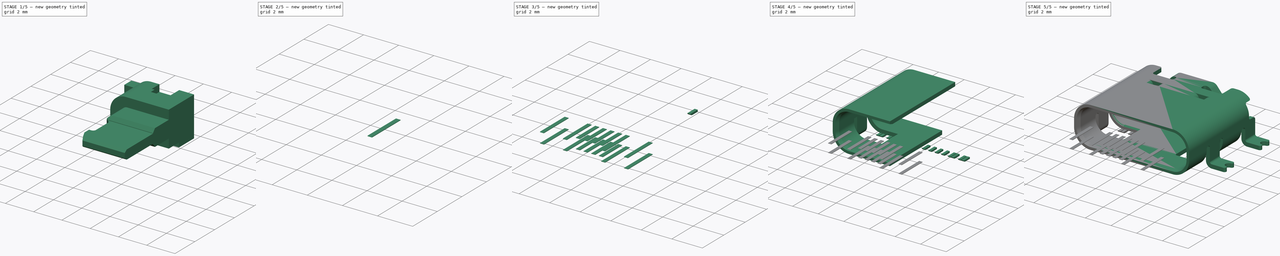
[diagram: build sequence overview — one tinted view per stage of 5, left to right]
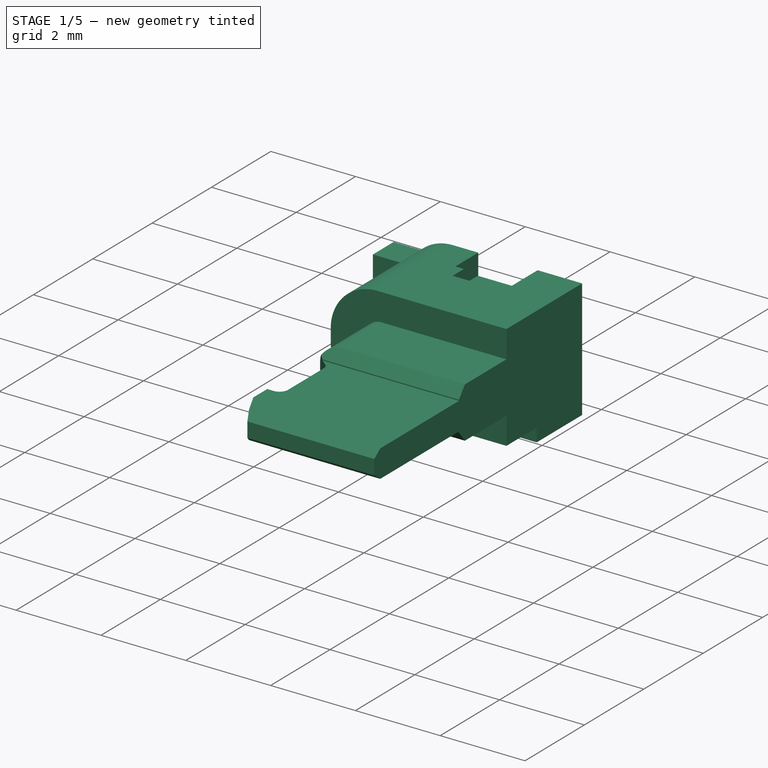
[diagram: stage 1 of 5 — iso view after this stage's code; geometry added in this stage tinted green]
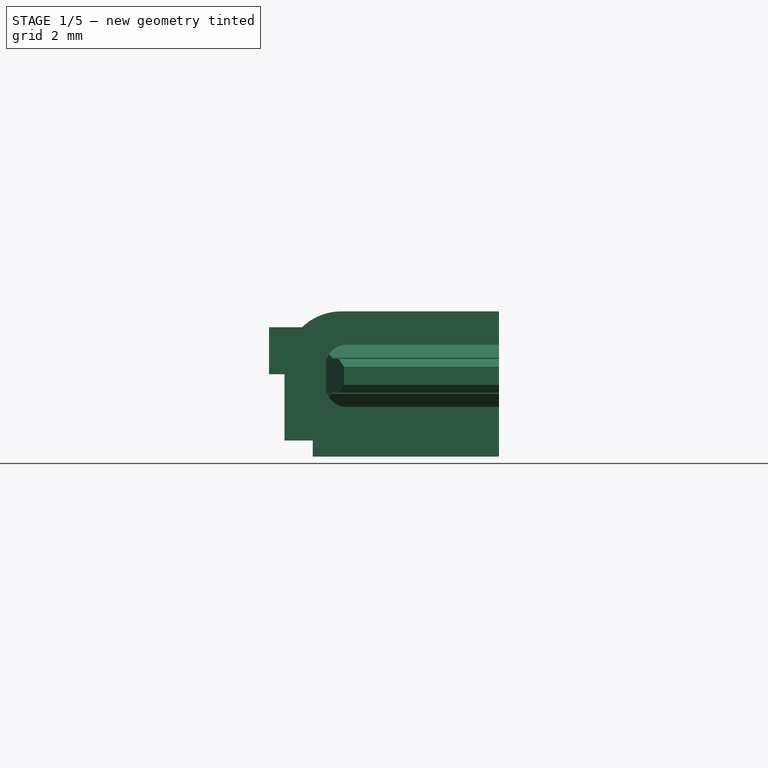
[diagram: stage 1 of 5 — front view after this stage's code; geometry added in this stage tinted green]
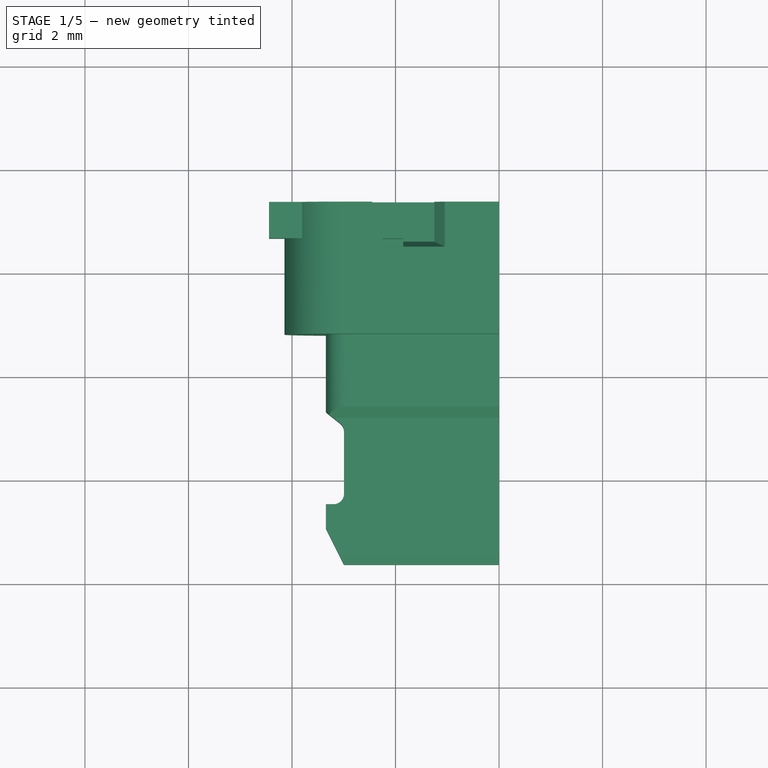
[diagram: stage 1 of 5 — top view after this stage's code; geometry added in this stage tinted green]
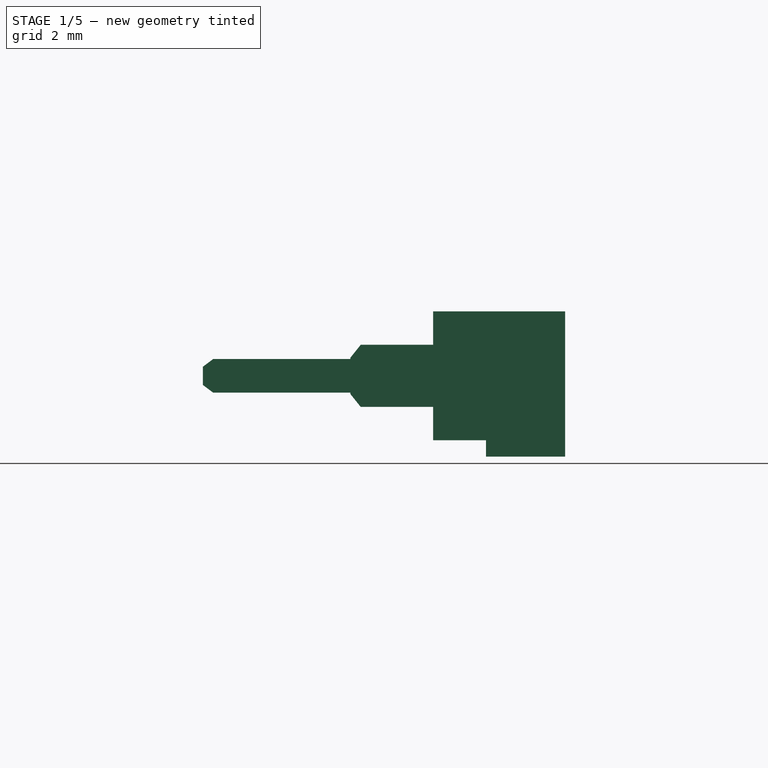
[diagram: stage 1 of 5 — right view after this stage's code; geometry added in this stage tinted green]
FCSTD DOCUMENT  (FreeCAD 1.0R39319 (Git))
Label: USB_C_Receptacle_GCT_USB4110
License: All rights reserved
LicenseURL: https://en.wikipedia.org/wiki/All_rights_reserved
objects: Sketcher::SketchObject×30, PartDesign::Body×18, PartDesign::Pocket×13, PartDesign::FeatureBase×13, PartDesign::Chamfer×12, PartDesign::Pad×10, PartDesign::Mirrored×7, Image::ImagePlane×6, PartDesign::AdditivePipe×5, PartDesign::Plane×3, App::Part×3, PartDesign::Fillet×2, PartDesign::SubShapeBinder×2, Part::Mirroring×2, Part::MultiFuse×2, App::DocumentObjectGroup×1
note: 253 computed .brp shape members not serialized (recipe doc carries the construction recipe); baked Part::Feature solids carry a one-line shape summary decoded from their .brp

FEATURE [PartDesign::Plane] DatumPlane001
  AttachmentOffset = pos=(0,0,-7.35) rot=(0,0,1;0rad)
  AttachmentSupport = -> [XZ_Plane003]
  Length = 60
  MapMode = 5
  Placement = pos=(0,7.35,-1.6e-15) rot=(1,0,0;1.5708rad)
  ResizeMode = 0
  Width = 60
FEATURE [Sketcher::SketchObject] Sketch015
  ArcFitTolerance = 1e-06
  AttachmentSupport = -> [DatumPlane001]
  FullyConstrained = true
  MakeInternals = false
  MapMode = 5
  Placement = pos=(0,7.35,-1.6e-15) rot=(1,0,0;1.5708rad)
  sketch-geometry (7):
    g0: LineSegment StartX=0 StartY=0.12 StartZ=0 EndX=0 EndY=2.925 EndZ=0
    g1: LineSegment StartX=0 StartY=2.925 StartZ=0 EndX=-3.045 EndY=2.925 EndZ=0
    g2: LineSegment StartX=0 StartY=0.12 StartZ=0 EndX=-3.6 EndY=0.12 EndZ=0
    g3: LineSegment StartX=-3.6 StartY=0.12 StartZ=0 EndX=-3.6 EndY=0.43 EndZ=0
    g4: LineSegment StartX=-3.6 StartY=0.43 StartZ=0 EndX=-4.145 EndY=0.43 EndZ=0
    g5: LineSegment StartX=-4.145 StartY=0.43 StartZ=0 EndX=-4.145 EndY=1.825 EndZ=0
    g6: ArcOfCircle CenterX=-3.045 CenterY=1.825 CenterZ=0 NormalX=0 NormalY=0 NormalZ=1 AngleXU=0 Radius=1.1 StartAngle=1.5708 EndAngle=3.14159
  constraints (20):
    c: PointOnObject(g0,g-2)
    c: Vertical(g0)
    c: Coincident(g1,g0)
    c: Horizontal(g1)
    c: Coincident(g2,g0)
    c: Horizontal(g2)
    c: Coincident(g3,g2)
    c: Vertical(g3)
    c: Coincident(g4,g3)
    c: Coincident(g5,g4)
    c: Vertical(g5)
    c: Tangent(g6,g1) = -1.5708
    c: Tangent(g6,g5) = 1.5708
    c: Distance(g-1,g0) = 0.12
    c: DistanceY(g0,g0) = 2.805
    c: Horizontal(g4)
    c: DistanceX(g2,g2) = 3.6
    c: Distance(g3,g3) = 0.31
    c: DistanceX(g4,g-1) = 4.145
    c: Radius(g6) = 1.1
FEATURE [PartDesign::Pad] Pad001  label="Base"
  Direction = (0,-1,2e-16)
  Length = 1.53
  Length2 = 10
  Placement = pos=(0,7.35,-1.6e-15) rot=(1,0,0;1.5708rad)
  Profile = -> Sketch015
  ReferenceAxis = -> Sketch015 [N_Axis]
  Refine = true
  Suppressed = false
  Type = 0
FEATURE [Sketcher::SketchObject] Sketch016
  ArcFitTolerance = 1e-06
  AttachmentSupport = -> [Pad001]
  ExternalGeometry = -> [Pad001]
  FullyConstrained = true
  MakeInternals = false
  MapMode = 5
  Placement = pos=(0,5.82,-9e-16) rot=(1,0,0;1.5708rad)
  sketch-geometry (6):
    g0: LineSegment StartX=0 StartY=2.925 StartZ=0 EndX=0 EndY=0.435 EndZ=0
    g1: LineSegment StartX=0 StartY=2.925 StartZ=0 EndX=-3.045 EndY=2.925 EndZ=0
    g2: LineSegment StartX=-4.145 StartY=1.825 StartZ=0 EndX=-4.145 EndY=1.535 EndZ=0
    g3: LineSegment StartX=0 StartY=0.435 StartZ=0 EndX=-3.045 EndY=0.435 EndZ=0
    g4: ArcOfCircle CenterX=-3.045 CenterY=1.825 CenterZ=0 NormalX=0 NormalY=0 NormalZ=1 AngleXU=0 Radius=1.1 StartAngle=1.5708 EndAngle=3.14159
    g5: ArcOfCircle CenterX=-3.045 CenterY=1.535 CenterZ=0 NormalX=0 NormalY=0 NormalZ=1 AngleXU=0 Radius=1.1 StartAngle=3.14159 EndAngle=4.71239
  constraints (13):
    c: Coincident(g0,g-3)
    c: Vertical(g0)
    c: Coincident(g2,g-4)
    c: Coincident(g3,g0)
    c: Horizontal(g3)
    c: Tangent(g4,g1) = -1.5708
    c: Tangent(g4,g2) = -1.5708
    c: Coincident(g4,g-4)
    c: Vertical(g4,g5)
    c: Tangent(g5,g2) = -1.5708
    c: Tangent(g5,g3) = 1.5708
    c: DistanceY(g0,g0) = 2.49
    c: Coincident(g1,g0)
FEATURE [PartDesign::Pad] Pad002  label="ExtendSlot"
  BaseFeature = -> Pad001
  Direction = (0,-1,2e-16)
  Length = 1.02
  Length2 = 10
  Placement = pos=(0,7.35,-1.6e-15) rot=(1,0,0;1.5708rad)
  Profile = -> Sketch016
  ReferenceAxis = -> Sketch016 [N_Axis]
  Refine = true
  Suppressed = false
  Type = 0
FEATURE [Sketcher::SketchObject] Sketch017
  ArcFitTolerance = 1e-06
  AttachmentSupport = -> [Pad002]
  ExternalGeometry = -> [Pad002]
  FullyConstrained = true
  MakeInternals = false
  MapMode = 5
  Placement = pos=(0,7.35,-1.6e-15) rot=(-1,0,0;1.5708rad)
  sketch-geometry (5):
    g0: LineSegment StartX=-3.80525 StartY=-2.62 StartZ=0 EndX=-4.445 EndY=-2.62 EndZ=0
    g1: LineSegment StartX=-4.445 StartY=-2.62 StartZ=0 EndX=-4.445 EndY=-1.71 EndZ=0
    g2: LineSegment StartX=-4.445 StartY=-1.71 StartZ=0 EndX=-4.145 EndY=-1.71 EndZ=0
    g3: LineSegment StartX=-4.145 StartY=-1.71 StartZ=0 EndX=-4.145 EndY=-1.825 EndZ=0
    g4: ArcOfCircle CenterX=-3.045 CenterY=-1.825 CenterZ=0 NormalX=0 NormalY=0 NormalZ=1 AngleXU=0 Radius=1.1 StartAngle=3.14159 EndAngle=3.94933
  constraints (14):
    c: PointOnObject(g0,g-4)
    c: Horizontal(g0)
    c: Coincident(g0,g1)
    c: Vertical(g1)
    c: Coincident(g1,g2)
    c: PointOnObject(g2,g-3)
    c: Horizontal(g2)
    c: Coincident(g2,g3)
    c: Coincident(g3,g-4)
    c: Tangent(g3,g4) = -1.5708
    c: Coincident(g4,g0)
    c: Distance(g2,g2) = 0.3
    c: DistanceY(g1,g1) = 0.91
    c: DistanceY(g2,g-3) = 1.28
FEATURE [PartDesign::Pad] Pad003  label="SideHolder"
  BaseFeature = -> Pad002
  Direction = (0,1,2e-16)
  Length = 0.7
  Length2 = 10
  Placement = pos=(0,7.35,-1.6e-15) rot=(1,0,0;1.5708rad)
  Profile = -> Sketch017
  ReferenceAxis = -> Sketch017 [N_Axis]
  Refine = true
  Reversed = true
  Suppressed = false
  Type = 0
FEATURE [Sketcher::SketchObject] Sketch018
  ArcFitTolerance = 1e-06
  AttachmentSupport = -> [Pad003]
  ExternalGeometry = -> [Pad003]
  FullyConstrained = true
  MakeInternals = false
  MapMode = 5
  Placement = pos=(0,4.8,-1e-16) rot=(1,0,0;1.5708rad)
  sketch-geometry (7):
    g0: LineSegment StartX=-2.945 StartY=2.28 StartZ=0 EndX=0 EndY=2.28 EndZ=0
    g1: LineSegment StartX=0 StartY=2.28 StartZ=0 EndX=0 EndY=1.08 EndZ=0
    g2: LineSegment StartX=0 StartY=1.08 StartZ=0 EndX=-2.945 EndY=1.08 EndZ=0
    g3: LineSegment StartX=-3.345 StartY=1.48 StartZ=0 EndX=-3.345 EndY=1.88 EndZ=0
    g4: ArcOfCircle CenterX=-2.945 CenterY=1.88 CenterZ=0 NormalX=0 NormalY=0 NormalZ=1 AngleXU=0 Radius=0.4 StartAngle=1.5708 EndAngle=3.14159
    g5: ArcOfCircle CenterX=-2.945 CenterY=1.48 CenterZ=0 NormalX=0 NormalY=0 NormalZ=1 AngleXU=0 Radius=0.4 StartAngle=3.14159 EndAngle=4.71239
    g6: LineSegment [constr] StartX=-4.145 StartY=1.68 StartZ=0 EndX=0 EndY=1.68 EndZ=0
  constraints (17):
    c: Horizontal(g0)
    c: Coincident(g0,g1)
    c: Vertical(g1)
    c: Coincident(g1,g2)
    c: Horizontal(g2)
    c: Vertical(g3)
    c: Tangent(g5,g2) = 1.5708
    c: Tangent(g5,g3) = 1.5708
    c: Tangent(g4,g3) = 1.5708
    c: Tangent(g4,g0) = 1.5708
    c: Vertical(g1,g-1)
    c: Symmetric(g-3,g-3,g6)
    c: Symmetric(g1,g1,g6)
    c: Symmetric(g3,g3,g6)
    c: DistanceY(g1,g1) = 1.2
    c: DistanceX(g3,g-1) = 3.345
    c: Radius(g4) = 0.4
FEATURE [PartDesign::Pad] Pad004  label="FrontBase"
  BaseFeature = -> Pad003
  Direction = (0,-1,2e-16)
  Length = 1.6
  Length2 = 10
  Placement = pos=(0,7.35,-1.6e-15) rot=(1,0,0;1.5708rad)
  Profile = -> Sketch018
  ReferenceAxis = -> Sketch018 [N_Axis]
  Refine = true
  Suppressed = false
  Type = 0
FEATURE [Sketcher::SketchObject] Sketch019
  ArcFitTolerance = 1e-06
  AttachmentSupport = -> [YZ_Plane003]
  ExternalGeometry = -> [Pad004]
  FullyConstrained = true
  MakeInternals = false
  MapMode = 5
  Placement = pos=(0,0,0) rot=(0.57735,0.57735,0.57735;2.0944rad)
  sketch-geometry (6):
    g0: LineSegment StartX=3.4 StartY=2.28 StartZ=0 EndX=3.2 EndY=2.28 EndZ=0
    g1: LineSegment StartX=3.2 StartY=2.28 StartZ=0 EndX=3.2 EndY=2.03 EndZ=0
    g2: LineSegment StartX=3.2 StartY=2.03 StartZ=0 EndX=3.4 EndY=2.28 EndZ=0
    g3: LineSegment StartX=3.4 StartY=1.08 StartZ=0 EndX=3.2 EndY=1.33 EndZ=0
    g4: LineSegment StartX=3.2 StartY=1.33 StartZ=0 EndX=3.2 EndY=1.08 EndZ=0
    g5: LineSegment StartX=3.2 StartY=1.08 StartZ=0 EndX=3.4 EndY=1.08 EndZ=0
  constraints (16):
    c: PointOnObject(g0,g-3)
    c: Coincident(g0,g-4)
    c: Coincident(g0,g1)
    c: PointOnObject(g1,g-4)
    c: Coincident(g1,g2)
    c: Coincident(g2,g0)
    c: DistanceY(g1,g1) = 0.25
    c: PointOnObject(g3,g-5)
    c: PointOnObject(g3,g-4)
    c: Coincident(g4,g3)
    c: Coincident(g4,g-5)
    c: Coincident(g5,g4)
    c: Coincident(g5,g3)
    c: Equal(g4,g1)
    c: DistanceX(g0,g0) = 0.2
    c: Equal(g5,g0)
FEATURE [PartDesign::Pocket] Pocket007  label="FrontBaseChamfer"
  BaseFeature = -> Pad004
  Direction = (-1,0,0)
  Length = 5
  Length2 = 5
  Placement = pos=(0,7.35,-1.6e-15) rot=(1,0,0;1.5708rad)
  Profile = -> Sketch019
  ReferenceAxis = -> Sketch019 [N_Axis]
  Refine = true
  Suppressed = false
  Type = 1
FEATURE [Sketcher::SketchObject] Sketch020
  ArcFitTolerance = 1e-06
  AttachmentSupport = -> [XY_Plane003]
  ExternalGeometry = -> [Pocket007]
  FullyConstrained = true
  MakeInternals = false
  MapMode = 5
  sketch-geometry (3):
    g0: LineSegment StartX=-3.345 StartY=3.3 StartZ=0 EndX=-3.22 EndY=3.2 EndZ=0
    g1: LineSegment StartX=-3.22 StartY=3.2 StartZ=0 EndX=-3.345 EndY=3.2 EndZ=0
    g2: LineSegment StartX=-3.345 StartY=3.2 StartZ=0 EndX=-3.345 EndY=3.3 EndZ=0
  constraints (8):
    c: PointOnObject(g0,g-5)
    c: PointOnObject(g1,g-3)
    c: Coincident(g1,g-5)
    c: Coincident(g2,g1)
    c: Coincident(g2,g0)
    c: DistanceX(g1,g1) = 0.125
    c: Coincident(g0,g1)
    c: Distance(g2,g2) = 0.1
FEATURE [PartDesign::Pocket] Pocket008  label="FrontBaseChamfer2"
  BaseFeature = -> Pocket007
  Direction = (0,0,-1)
  Length = 5
  Length2 = 5
  Placement = pos=(0,7.35,-1.6e-15) rot=(1,0,0;1.5708rad)
  Profile = -> Sketch020
  ReferenceAxis = -> Sketch020 [N_Axis]
  Refine = true
  Reversed = true
  Suppressed = false
  Type = 1
FEATURE [PartDesign::Plane] DatumPlane002
  AttachmentOffset = pos=(0,0,0.2) rot=(0,0,1;0rad)
  AttachmentSupport = -> [Pocket008]
  Length = 60
  MapMode = 1
  Placement = pos=(-3.345,3.3,1.68) rot=(0,0,1;0rad)
  ResizeMode = 0
  Width = 60
FEATURE [Sketcher::SketchObject] Sketch021
  ArcFitTolerance = 1e-06
  AttachmentSupport = -> [DatumPlane002]
  ExternalGeometry = -> [Pocket008]
  FullyConstrained = true
  MakeInternals = false
  MapMode = 5
  Placement = pos=(-3.345,3.3,1.68) rot=(0,0,1;0rad)
  sketch-geometry (10):
    g0: LineSegment StartX=3.345 StartY=-0.1 StartZ=0 EndX=3.345 EndY=-2.95 EndZ=0
    g1: LineSegment StartX=3.345 StartY=-2.95 StartZ=0 EndX=0.35 EndY=-2.95 EndZ=0
    g2: LineSegment StartX=0.35 StartY=-2.95 StartZ=0 EndX=-8e-16 EndY=-2.25 EndZ=0
    g3: LineSegment StartX=-8e-16 StartY=-2.25 StartZ=0 EndX=-8e-16 EndY=-1.78 EndZ=0
    g4: LineSegment StartX=-8e-16 StartY=-1.78 StartZ=0 EndX=0.15 EndY=-1.78 EndZ=0
    g5: LineSegment StartX=0.35 StartY=-1.58 StartZ=0 EndX=0.35 EndY=-0.376125 EndZ=0
    g6: LineSegment StartX=0.125 StartY=-0.1 StartZ=0 EndX=0.274939 EndY=-0.219951 EndZ=0
    g7: ArcOfCircle CenterX=0.15 CenterY=-0.376125 CenterZ=0 NormalX=0 NormalY=0 NormalZ=1 AngleXU=0 Radius=0.2 StartAngle=0 EndAngle=0.896055
    g8: ArcOfCircle CenterX=0.15 CenterY=-1.58 CenterZ=0 NormalX=0 NormalY=0 NormalZ=1 AngleXU=0 Radius=0.2 StartAngle=4.71239 EndAngle=6.28319
    g9: LineSegment StartX=0.125 StartY=-0.1 StartZ=0 EndX=3.345 EndY=-0.1 EndZ=0
  constraints (26):
    c: Coincident(g0,g-3)
    c: Vertical(g0)
    c: Coincident(g1,g0)
    c: Horizontal(g1)
    c: Coincident(g2,g1)
    c: Coincident(g3,g2)
    c: Coincident(g4,g3)
    c: Horizontal(g4)
    c: Vertical(g5)
    c: Coincident(g6,g-3)
    c: Tangent(g8,g4) = -1.5708
    c: Tangent(g8,g5) = -1.5708
    c: Tangent(g7,g5) = -1.5708
    c: Tangent(g7,g6) = 1.5708
    c: Coincident(g9,g6)
    c: Coincident(g9,g0)
    c: DistanceX(g2,g1) = 0.35
    c: Vertical(g5,g1)
    c: Equal(g8,g7)
    c: DistanceY(g0,g0) = 2.85
    c: DistanceY(g1,g2) = 0.7
    c: DistanceX(g1,g1) = 2.995
    c: Vertical(g3)
    c: Tangent(g-4,g6)
    c: DistanceY(g3,g3) = 0.47
    c: Radius(g8) = 0.2
FEATURE [PartDesign::Pad] Pad005  label="PinsBase"
  BaseFeature = -> Pocket008
  Direction = (0,0,1)
  Length = 0.65
  Length2 = 10
  Midplane = true
  Placement = pos=(0,7.35,-1.6e-15) rot=(1,0,0;1.5708rad)
  Profile = -> Sketch021
  ReferenceAxis = -> Sketch021 [N_Axis]
  Refine = true
  Suppressed = false
  Type = 0
FEATURE [PartDesign::Chamfer] Chamfer002  label="PinBaseTipChamfer"
  Angle = 45
  Base = -> Pad005 [Edge75]
  BaseFeature = -> Pad005
  ChamferType = 1
  FlipDirection = false
  Placement = pos=(0,7.35,-1.6e-15) rot=(1,0,0;1.5708rad)
  Refine = true
  Size = 0.2
  Size2 = 0.15
  SupportTransform = false
  Suppressed = false
  UseAllEdges = false
FEATURE [PartDesign::Chamfer] Chamfer003  label="PinBaseTipChamfer2"
  Angle = 45
  Base = -> Chamfer002 [Edge51]
  BaseFeature = -> Chamfer002
  ChamferType = 1
  FlipDirection = false
  Placement = pos=(0,7.35,-1.6e-15) rot=(1,0,0;1.5708rad)
  Refine = true
  Size = 0.15
  Size2 = 0.2
  SupportTransform = false
  Suppressed = false
  UseAllEdges = false
FEATURE [Sketcher::SketchObject] Sketch022
  ArcFitTolerance = 1e-06
  AttachmentSupport = -> [Chamfer003]
  FullyConstrained = true
  MakeInternals = false
  MapMode = 5
  Placement = pos=(0,7.35,2.925) rot=(0,0,1;3.14159rad)
  sketch-geometry (4):
    g0: LineSegment StartX=2.45 StartY=0 StartZ=0 EndX=2.45 EndY=0.77 EndZ=0
    g1: LineSegment StartX=2.45 StartY=0.77 StartZ=0 EndX=1.25 EndY=0.77 EndZ=0
    g2: LineSegment StartX=1.25 StartY=0.77 StartZ=0 EndX=1.25 EndY=0 EndZ=0
    g3: LineSegment StartX=1.25 StartY=0 StartZ=0 EndX=2.45 EndY=0 EndZ=0
  constraints (12):
    c: Coincident(g0,g1)
    c: Coincident(g1,g2)
    c: Coincident(g2,g3)
    c: Coincident(g3,g0)
    c: Vertical(g0)
    c: Vertical(g2)
    c: Horizontal(g1)
    c: Horizontal(g3)
    c: PointOnObject(g0,g-1)
    c: DistanceY(g0,g0) = 0.77
    c: DistanceX(g-1,g2) = 1.25
    c: DistanceX(g3,g3) = 1.2
FEATURE [PartDesign::Pocket] Pocket009  label="BackClipPocket001"
  BaseFeature = -> Chamfer003
  Direction = (0,0,-1)
  Length = 0.8
  Length2 = 5
  Placement = pos=(0,7.35,-1.6e-15) rot=(1,0,0;1.5708rad)
  Profile = -> Sketch022
  ReferenceAxis = -> Sketch022 [N_Axis]
  Refine = true
  Suppressed = false
  Type = 0
FEATURE [Sketcher::SketchObject] Sketch023
  ArcFitTolerance = 1e-06
  AttachmentSupport = -> [Pocket009]
  ExternalGeometry = -> [Pocket009]
  FullyConstrained = true
  MakeInternals = false
  MapMode = 5
  Placement = pos=(0,7.35,2.925) rot=(0,0,1;3.14159rad)
  sketch-geometry (4):
    g0: LineSegment StartX=2.25 StartY=0.7 StartZ=0 EndX=2.25 EndY=1.15 EndZ=0
    g1: LineSegment StartX=2.25 StartY=1.15 StartZ=0 EndX=1.85 EndY=1.15 EndZ=0
    g2: LineSegment StartX=1.85 StartY=1.15 StartZ=0 EndX=1.85 EndY=0.7 EndZ=0
    g3: LineSegment StartX=1.85 StartY=0.7 StartZ=0 EndX=2.25 EndY=0.7 EndZ=0
  constraints (12):
    c: Coincident(g0,g1)
    c: Coincident(g1,g2)
    c: Coincident(g2,g3)
    c: Coincident(g3,g0)
    c: Vertical(g0)
    c: Vertical(g2)
    c: Horizontal(g1)
    c: Horizontal(g3)
    c: DistanceX(g1,g1) = 0.4
    c: DistanceY(g0,g0) = 0.45
    c: DistanceX(g0,g-3) = 0.2
    c: Distance(g0,g-3) = 0.07
FEATURE [PartDesign::Pocket] Pocket010  label="BackClipPocket002"
  BaseFeature = -> Pocket009
  Direction = (0,0,-1)
  Length = 1.35
  Length2 = 5
  Placement = pos=(0,7.35,-1.6e-15) rot=(1,0,0;1.5708rad)
  Profile = -> Sketch023
  ReferenceAxis = -> Sketch023 [N_Axis]
  Refine = true
  Suppressed = false
  Type = 0
FEATURE [PartDesign::Chamfer] Chamfer004  label="BackClipPocketChamfer"
  Angle = 45
  Base = -> Pocket010 [Edge74]
  BaseFeature = -> Pocket010
  ChamferType = 0
  FlipDirection = false
  Placement = pos=(0,7.35,-1.6e-15) rot=(1,0,0;1.5708rad)
  Refine = true
  Size = 0.2
  Size2 = 1
  SupportTransform = false
  Suppressed = false
  UseAllEdges = false
FEATURE [PartDesign::Chamfer] Chamfer005  label="BackClipPocketChamfer001"
  Angle = 45
  Base = -> Chamfer004 [Edge6]
  BaseFeature = -> Chamfer004
  ChamferType = 1
  FlipDirection = true
  Placement = pos=(0,7.35,-1.6e-15) rot=(1,0,0;1.5708rad)
  Refine = true
  Size = 0.2
  Size2 = 0.1
  SupportTransform = false
  Suppressed = false
  UseAllEdges = false
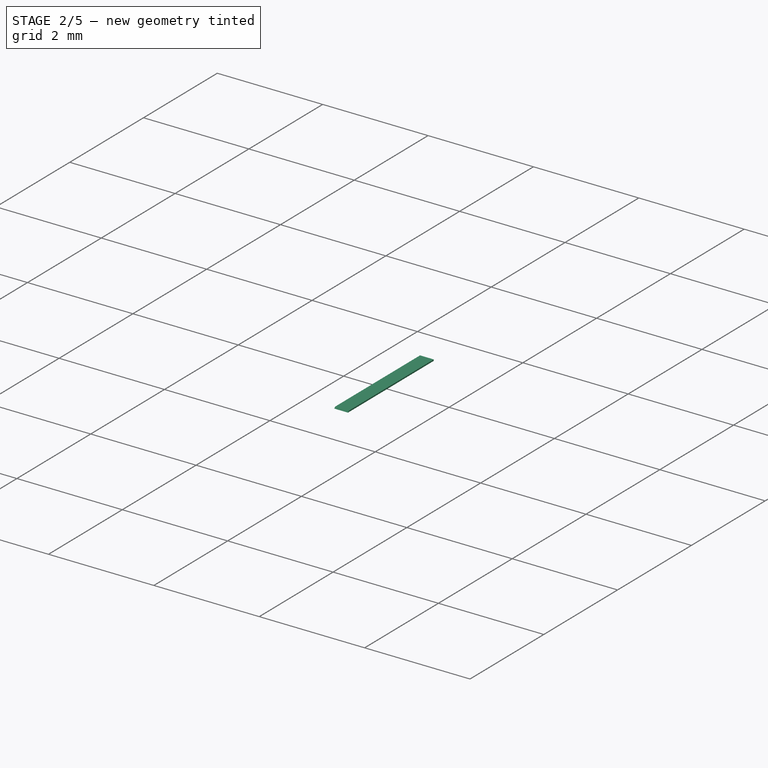
[diagram: stage 2 of 5 — iso view after this stage's code; geometry added in this stage tinted green]
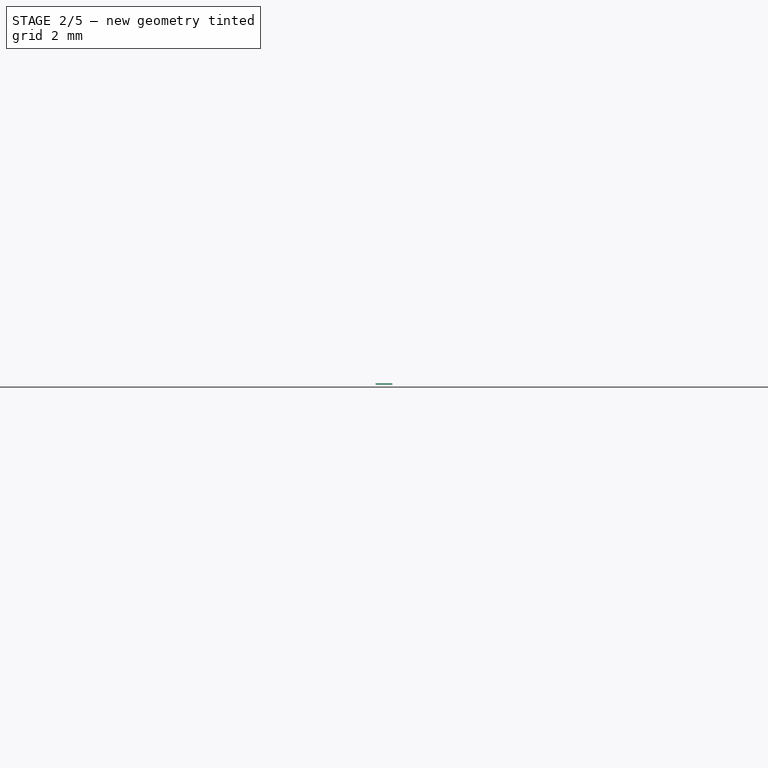
[diagram: stage 2 of 5 — front view after this stage's code; geometry added in this stage tinted green]
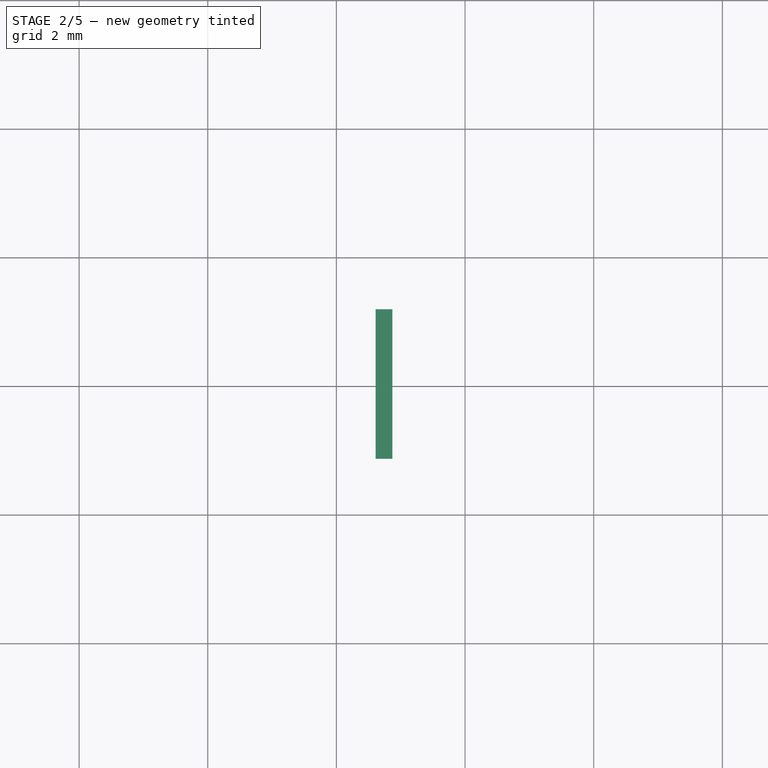
[diagram: stage 2 of 5 — top view after this stage's code; geometry added in this stage tinted green]
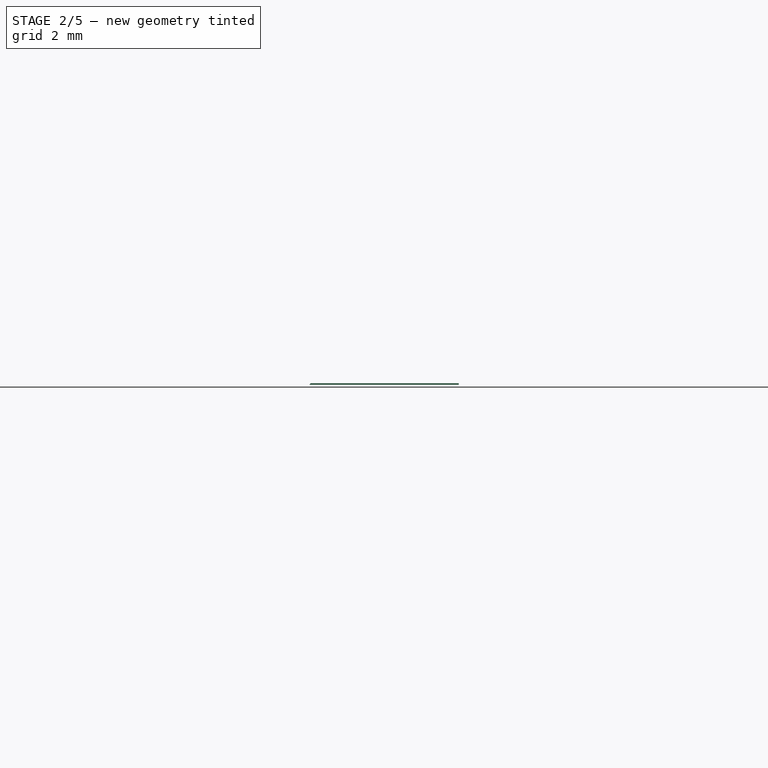
[diagram: stage 2 of 5 — right view after this stage's code; geometry added in this stage tinted green]
FEATURE [PartDesign::Chamfer] Chamfer006  label="BackClipPocketChamfer002"
  Angle = 45
  Base = -> Chamfer005 [Edge20]
  BaseFeature = -> Chamfer005
  ChamferType = 1
  FlipDirection = true
  Placement = pos=(0,7.35,-1.6e-15) rot=(1,0,0;1.5708rad)
  Refine = true
  Size = 0.2
  Size2 = 0.3
  SupportTransform = false
  Suppressed = false
  UseAllEdges = false
FEATURE [Sketcher::SketchObject] Sketch024
  ArcFitTolerance = 1e-06
  AttachmentSupport = -> [Chamfer006]
  ExternalGeometry = -> [Chamfer006]
  FullyConstrained = true
  MakeInternals = false
  MapMode = 5
  Placement = pos=(0,4.8,1.6e-15) rot=(1,0,0;1.5708rad)
  sketch-geometry (4):
    g0: LineSegment StartX=-2.4 StartY=2.28 StartZ=0 EndX=-1.1 EndY=2.28 EndZ=0
    g1: LineSegment StartX=-1.1 StartY=2.28 StartZ=0 EndX=-1.1 EndY=2.925 EndZ=0
    g2: LineSegment StartX=-1.1 StartY=2.925 StartZ=0 EndX=-2.4 EndY=2.925 EndZ=0
    g3: LineSegment StartX=-2.4 StartY=2.925 StartZ=0 EndX=-2.4 EndY=2.28 EndZ=0
  constraints (12):
    c: Coincident(g0,g1)
    c: Coincident(g1,g2)
    c: Coincident(g2,g3)
    c: Coincident(g3,g0)
    c: Horizontal(g0)
    c: Horizontal(g2)
    c: Vertical(g1)
    c: Vertical(g3)
    c: PointOnObject(g0,g-3)
    c: DistanceX(g2,g2) = 1.3
    c: PointOnObject(g1,g-4)
    c: Distance(g1,g-2) = 1.1
FEATURE [PartDesign::Pocket] Pocket011  label="TopClipPocket"
  BaseFeature = -> Chamfer006
  Direction = (0,1,-1.4e-15)
  Length = 0.55
  Length2 = 5
  Placement = pos=(0,7.35,-1.6e-15) rot=(1,0,0;1.5708rad)
  Profile = -> Sketch024
  ReferenceAxis = -> Sketch024 [N_Axis]
  Refine = true
  Suppressed = false
  Type = 0
FEATURE [PartDesign::Mirrored] Mirrored004  label="BottomClipPocket"
  BaseFeature = -> Pocket011
  MirrorPlane = -> DatumPlane002
  Originals = -> [Pocket011]
  Placement = pos=(0,7.35,-1.6e-15) rot=(1,0,0;1.5708rad)
  Refine = true
  Suppressed = false
  TransformMode = 0
FEATURE [PartDesign::Chamfer] Chamfer007  label="Top+BottomClipChamfer"
  Angle = 45
  Base = -> Mirrored004 [Edge167,Edge75]
  BaseFeature = -> Mirrored004
  ChamferType = 0
  FlipDirection = false
  Placement = pos=(0,7.35,-1.6e-15) rot=(1,0,0;1.5708rad)
  Refine = true
  Size = 0.15
  Size2 = 1
  SupportTransform = false
  Suppressed = false
  UseAllEdges = false
FEATURE [PartDesign::Chamfer] Chamfer008
  Angle = 45
  Base = -> Chamfer007 [Edge24,Edge16,Edge48,Edge49,Edge50,Edge51,Edge131,Edge5,Edge23,Edge135,Edge137]
  BaseFeature = -> Chamfer007
  ChamferType = 0
  FlipDirection = false
  Placement = pos=(0,7.35,-1.6e-15) rot=(1,0,0;1.5708rad)
  Refine = true
  Size = 0.2
  Size2 = 1
  SupportTransform = false
  Suppressed = false
  UseAllEdges = false
FEATURE [PartDesign::Chamfer] Chamfer009
  Angle = 45
  Base = -> Chamfer008 [Edge199,Edge197]
  BaseFeature = -> Chamfer008
  ChamferType = 0
  FlipDirection = false
  Placement = pos=(0,7.35,-1.6e-15) rot=(1,0,0;1.5708rad)
  Refine = true
  Size = 0.15
  Size2 = 1
  SupportTransform = false
  Suppressed = false
  UseAllEdges = false
FEATURE [Sketcher::SketchObject] Sketch025
  ArcFitTolerance = 1e-06
  AttachmentSupport = -> [Chamfer009]
  ExternalGeometry = -> [Chamfer009]
  FullyConstrained = true
  MakeInternals = false
  MapMode = 5
  Placement = pos=(0,7.35,0.12) rot=(1,0,0;3.14159rad)
  sketch-geometry (1):
    g0: Circle CenterX=-2.89 CenterY=1.07 CenterZ=0 NormalX=0 NormalY=0 NormalZ=1 AngleXU=0 Radius=0.25
  constraints (3):
    c: Diameter(g0) = 0.5
    c: Distance(g0,g-2) = 2.89
    c: Distance(g0,g-3) = 0.46
FEATURE [PartDesign::Pad] Pad006  label="LocatingPin"
  BaseFeature = -> Chamfer009
  Direction = (0,-1.3e-15,-1)
  Length = 0.75
  Length2 = 10
  Placement = pos=(0,7.35,-1.6e-15) rot=(1,0,0;1.5708rad)
  Profile = -> Sketch025
  ReferenceAxis = -> Sketch025 [N_Axis]
  Refine = true
  Suppressed = false
  Type = 0
FEATURE [Image::ImagePlane] USB4114  label="USB4110-Bottom"
  Placement = pos=(21.3,-7.3,9e-16) rot=(1,0,0;3.14159rad)
  XSize = 64.1294
  YSize = 45.3549
FEATURE [PartDesign::Chamfer] Chamfer010  label="LocatingPinChamfer"
  Angle = 45
  Base = -> Pad006 [Edge199,Edge127]
  BaseFeature = -> Pad006
  ChamferType = 0
  FlipDirection = false
  Placement = pos=(0,7.35,-1.6e-15) rot=(1,0,0;1.5708rad)
  Refine = true
  Size = 0.1
  Size2 = 1
  SupportTransform = false
  Suppressed = false
  UseAllEdges = false
FEATURE [Sketcher::SketchObject] Sketch026
  ArcFitTolerance = 1e-06
  AttachmentSupport = -> [Chamfer010]
  FullyConstrained = true
  MakeInternals = false
  MapMode = 5
  Placement = pos=(0,7.35,0.12) rot=(1,0,0;3.14159rad)
  sketch-geometry (4):
    g0: LineSegment StartX=0 StartY=1.15 StartZ=0 EndX=-0.4 EndY=1.15 EndZ=0
    g1: LineSegment StartX=-0.4 StartY=1.15 StartZ=0 EndX=-0.4 EndY=0.7 EndZ=0
    g2: LineSegment StartX=-0.4 StartY=0.7 StartZ=0 EndX=0 EndY=0.7 EndZ=0
    g3: LineSegment StartX=0 StartY=0.7 StartZ=0 EndX=0 EndY=1.15 EndZ=0
  constraints (12):
    c: Coincident(g0,g1)
    c: Coincident(g1,g2)
    c: Coincident(g2,g3)
    c: Coincident(g3,g0)
    c: Horizontal(g0)
    c: Horizontal(g2)
    c: Vertical(g1)
    c: Vertical(g3)
    c: PointOnObject(g0,g-2)
    c: DistanceX(g0,g0) = 0.4
    c: DistanceY(g1,g1) = 0.45
    c: DistanceY(g-1,g2) = 0.7
FEATURE [Image::ImagePlane] USB4115  label="USB4110-Section"
  Placement = pos=(-3.1e-15,-3.03,11.12) rot=(0.57735,0.57735,0.57735;2.0944rad)
  XSize = 64.1294
  YSize = 45.3549
FEATURE [PartDesign::Pocket] Pocket012  label="BottomPocket"
  BaseFeature = -> Chamfer010
  Direction = (0,1.4e-15,1)
  Length = 1.55
  Length2 = 5
  Placement = pos=(0,7.35,-1.6e-15) rot=(1,0,0;1.5708rad)
  Profile = -> Sketch026
  ReferenceAxis = -> Sketch026 [N_Axis]
  Refine = true
  Suppressed = false
  Type = 0
FEATURE [PartDesign::Chamfer] Chamfer011  label="BottomPocketChamfer"
  Angle = 45
  Base = -> Pocket012 [Edge52]
  BaseFeature = -> Pocket012
  ChamferType = 1
  FlipDirection = false
  Placement = pos=(0,7.35,-1.6e-15) rot=(1,0,0;1.5708rad)
  Refine = true
  Size = 0.3
  Size2 = 0.2
  SupportTransform = false
  Suppressed = false
  UseAllEdges = false
FEATURE [PartDesign::Body] Body015  label="ShortConnPin2"
  AllowCompound = false
  Group = -> [Clone009]
  Origin = -> Origin019
  Placement = pos=(-0.5,0,0) rot=(0,0,1;0rad)
  Tip = -> Clone009
FEATURE [PartDesign::SubShapeBinder] Binder004
  BindCopyOnChange = 0
  BindMode = 0
  ClaimChildren = false
  Context = -> Part [Part002.Body016.Binder004.]
  Fuse = false
  MakeFace = true
  OffsetFill = false
  OffsetIntersection = false
  OffsetJoinType = 0
  OffsetOpenResult = false
  PartialLoad = false
  Refine = true
  Relative = true
  Support = -> [Body001]
  _Version = 2
FEATURE [Sketcher::SketchObject] Sketch031
  ArcFitTolerance = 1e-06
  AttachmentSupport = -> [YZ_Plane020]
  FullyConstrained = true
  MakeInternals = false
  MapMode = 5
  Placement = pos=(0,0,0) rot=(0.57735,0.57735,0.57735;2.0944rad)
  sketch-geometry (4):
    g0: LineSegment StartX=0.875 StartY=2.005 StartZ=0 EndX=0.9 EndY=2.03 EndZ=0
    g1: LineSegment StartX=0.9 StartY=2.03 StartZ=0 EndX=3.2 EndY=2.03 EndZ=0
    g2: LineSegment StartX=3.2 StartY=2.03 StartZ=0 EndX=3.2 EndY=2.005 EndZ=0
    g3: LineSegment StartX=3.2 StartY=2.005 StartZ=0 EndX=0.875 EndY=2.005 EndZ=0
  constraints (10):
    c: PointOnObject(g0,g-3)
    c: Coincident(g0,g1)
    c: Coincident(g1,g-4)
    c: Coincident(g1,g2)
    c: Coincident(g2,g-4)
    c: Coincident(g2,g3)
    c: Coincident(g3,g0)
    c: Angle(g3,g0) = 0.785398
    c: DistanceX(g3,g3) = 2.325
    c: Horizontal(g1)
FEATURE [PartDesign::Pad] Pad011
  Direction = (1,0,0)
  Length = 0.26
  Length2 = 10
  Placement = pos=(0,0,0) rot=(1,1,1;2.0944rad)
  Profile = -> Sketch031
  ReferenceAxis = -> Sketch031 [N_Axis]
  Refine = true
  Reversed = true
  Suppressed = false
  Type = 0
FEATURE [PartDesign::Body] Body016  label="LongConnPin1"
  AllowCompound = false
  Group = -> [Binder004,Sketch031,Pad011]
  Origin = -> Origin020
  Placement = pos=(-1.12,0,0) rot=(0,0,1;0rad)
  Tip = -> Pad011
FEATURE [PartDesign::FeatureBase] Clone010
  BaseFeature = -> Body016
  Placement = pos=(-1.13,0,0) rot=(0,0,1;0rad)
  Suppressed = false
FEATURE [PartDesign::Body] Body  label="Shell"
  AllowCompound = false
  Group = -> [Sketch,Pad,Chamfer,Sketch001,Pocket,Sketch002,Pocket001,DatumPlane,Sketch003,Sketch004,AdditivePipe,Sketch005,Sketch006,AdditivePipe001,Sketch007,Pocket002,Mirrored,Sketch008,Pocket003,Mirrored001,Sketch009,Pocket004,Sketch010,AdditivePipe002,Mirrored002,Sketch011,AdditivePipe003,Mirrored003,Sketch012,Pocket005,Sketch013,Pocket006,Sketch014,AdditivePipe004,Chamfer001,Fillet,Fillet001,Mirrored005]
  Origin = -> Origin001
  Placement = pos=(0,-3.675,0) rot=(0,0,1;0rad)
  Tip = -> Mirrored005
FEATURE [PartDesign::Mirrored] Mirrored006
  BaseFeature = -> Chamfer011
  MirrorPlane = -> YZ_Plane003
  Placement = pos=(0,7.35,-1.6e-15) rot=(1,0,0;1.5708rad)
  Refine = true
  Suppressed = false
  TransformMode = 1
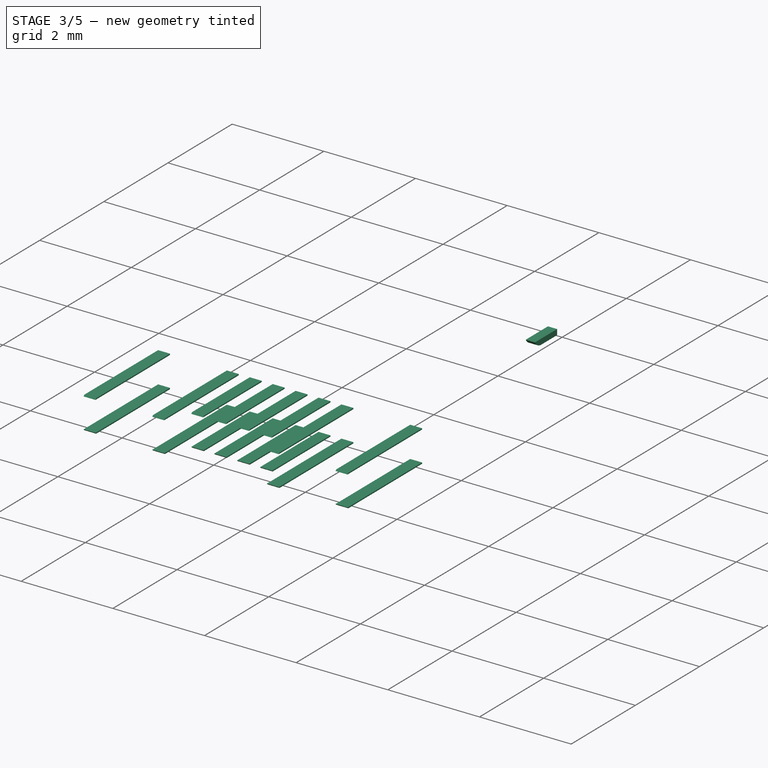
[diagram: stage 3 of 5 — iso view after this stage's code; geometry added in this stage tinted green]
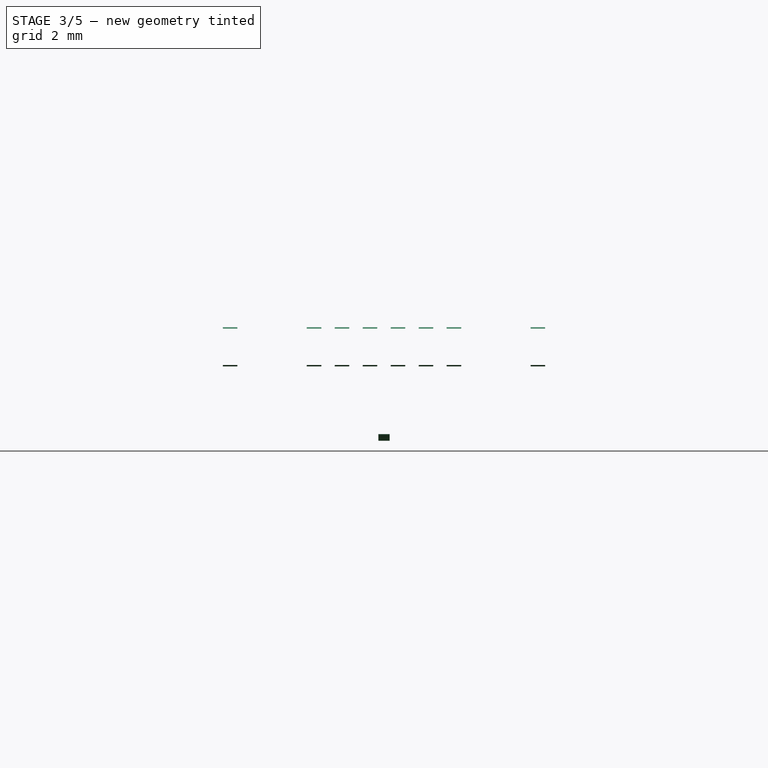
[diagram: stage 3 of 5 — front view after this stage's code; geometry added in this stage tinted green]
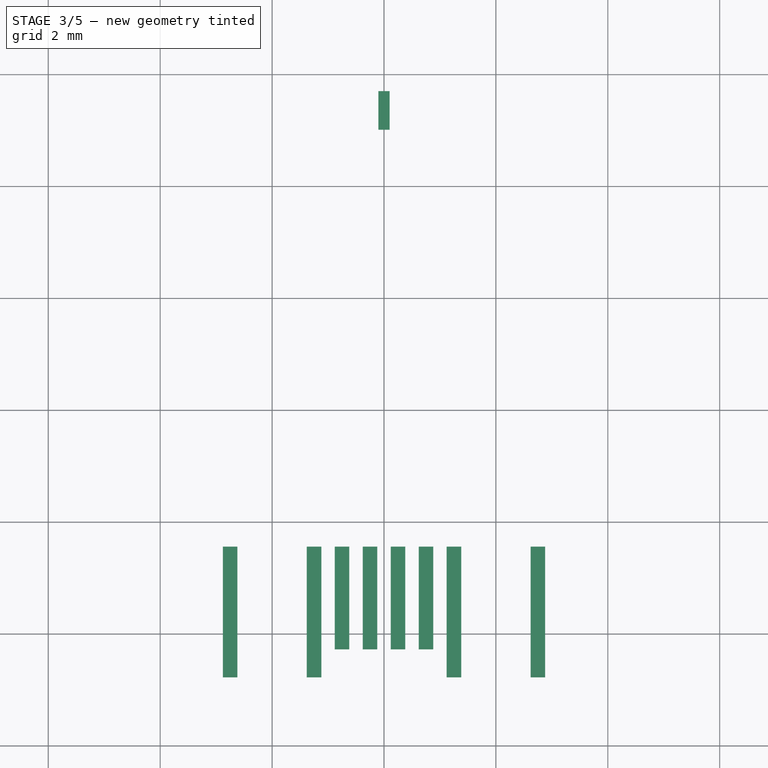
[diagram: stage 3 of 5 — top view after this stage's code; geometry added in this stage tinted green]
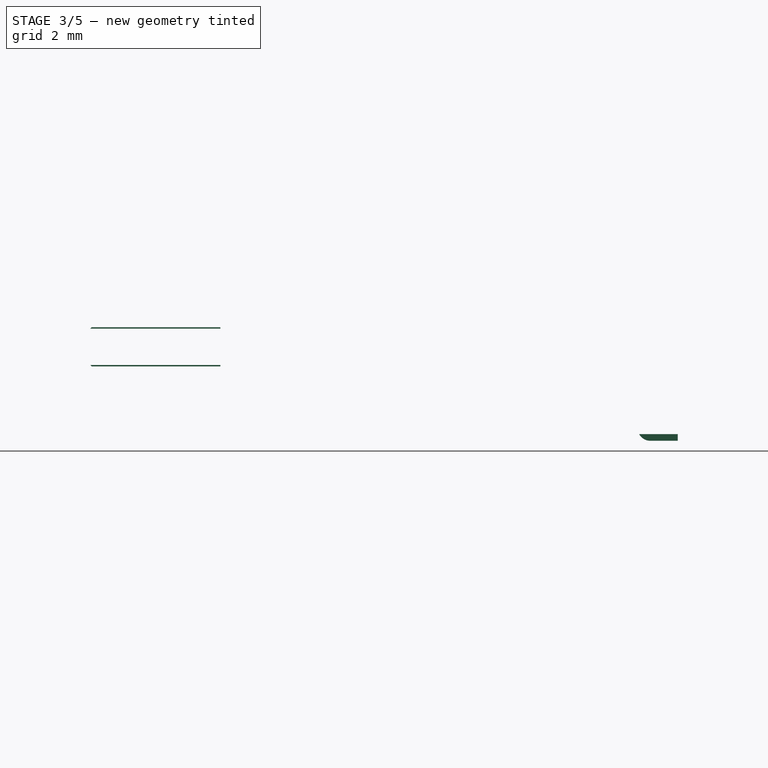
[diagram: stage 3 of 5 — right view after this stage's code; geometry added in this stage tinted green]
FEATURE [Sketcher::SketchObject] Sketch027  label="Pin"
  ArcFitTolerance = 1e-06
  AttachmentSupport = -> [YZ_Plane005]
  FullyConstrained = true
  MakeInternals = false
  MapMode = 5
  Placement = pos=(0,0,0) rot=(0.57735,0.57735,0.57735;2.0944rad)
  sketch-geometry (4):
    g0: LineSegment StartX=7.01 StartY=0.12 StartZ=0 EndX=7.7 EndY=0.12 EndZ=0
    g1: LineSegment StartX=7.7 StartY=0.12 StartZ=0 EndX=7.7 EndY=0 EndZ=0
    g2: LineSegment StartX=7.7 StartY=0 StartZ=0 EndX=7.209 EndY=0 EndZ=0
    g3: ArcOfCircle CenterX=7.209 CenterY=0.225004 CenterZ=0 NormalX=0 NormalY=0 NormalZ=1 AngleXU=0 Radius=0.225004 StartAngle=3.62712 EndAngle=4.71239
  constraints (12):
    c: Horizontal(g0)
    c: Coincident(g0,g1)
    c: PointOnObject(g1,g-1)
    c: Vertical(g1)
    c: Coincident(g1,g2)
    c: PointOnObject(g2,g-1)
    c: Coincident(g3,g0)
    c: Tangent(g3,g2) = 1.5708
    c: DistanceY(g1,g1) = 0.12
    c: DistanceX(g0,g0) = 0.69
    c: DistanceX(g-1,g1) = 7.7
    c: DistanceX(g0,g2) = 0.199
FEATURE [PartDesign::Pad] Pad007
  Direction = (1,0,0)
  Length = 0.2
  Length2 = 10
  Midplane = true
  Placement = pos=(0,0,0) rot=(1,1,1;2.0944rad)
  Profile = -> Sketch027
  ReferenceAxis = -> Sketch027 [N_Axis]
  Refine = true
  Suppressed = false
  Type = 0
FEATURE [PartDesign::Body] Body004  label="Pin2"
  AllowCompound = false
  Group = -> [Clone001]
  Origin = -> Origin007
  Placement = pos=(-0.75,0,0) rot=(0,0,1;0rad)
  Tip = -> Clone001
FEATURE [PartDesign::FeatureBase] Clone002
  BaseFeature = -> Body002
  Suppressed = false
FEATURE [PartDesign::Body] Body005  label="Pin3"
  AllowCompound = false
  Group = -> [Clone002]
  Origin = -> Origin008
  Placement = pos=(-1.25,0,0) rot=(0,0,1;0rad)
  Tip = -> Clone002
FEATURE [PartDesign::FeatureBase] Clone003
  BaseFeature = -> Body002
  Suppressed = false
FEATURE [PartDesign::Body] Body006  label="Pin4"
  AllowCompound = false
  Group = -> [Clone003]
  Origin = -> Origin009
  Placement = pos=(-1.75,0,0) rot=(0,0,1;0rad)
  Tip = -> Clone003
FEATURE [PartDesign::FeatureBase] Clone004
  BaseFeature = -> Body002
  Suppressed = false
FEATURE [PartDesign::Body] Body007  label="Pin5"
  AllowCompound = false
  Group = -> [Clone004]
  Origin = -> Origin010
  Placement = pos=(-2.275,0,0) rot=(0,0,1;0rad)
  Tip = -> Clone004
FEATURE [PartDesign::FeatureBase] Clone005
  BaseFeature = -> Body002
  Suppressed = false
FEATURE [PartDesign::Body] Body008  label="Pin6"
  AllowCompound = false
  Group = -> [Clone005]
  Origin = -> Origin011
  Placement = pos=(-2.525,0,0) rot=(0,0,1;0rad)
  Tip = -> Clone005
FEATURE [PartDesign::FeatureBase] Clone006
  BaseFeature = -> Body002
  Suppressed = false
FEATURE [PartDesign::Body] Body009  label="Pin7"
  AllowCompound = false
  Group = -> [Clone006]
  Origin = -> Origin012
  Placement = pos=(-3.075,0,0) rot=(0,0,1;0rad)
  Tip = -> Clone006
FEATURE [App::Part] Part001  label="BackPins"
  Group = -> [Body002,Body004,Body005,Body006,Body007,Body008,Body009,Body003]
  Origin = -> Origin005
FEATURE [PartDesign::SubShapeBinder] Binder003
  BindCopyOnChange = 0
  BindMode = 0
  ClaimChildren = false
  Context = -> Part [Part002.Body014.Binder003.]
  Fuse = false
  MakeFace = true
  OffsetFill = false
  OffsetIntersection = false
  OffsetJoinType = 0
  OffsetOpenResult = false
  PartialLoad = false
  Refine = true
  Relative = true
  Support = -> [Body001]
  _Version = 2
FEATURE [Sketcher::SketchObject] Sketch030
  ArcFitTolerance = 1e-06
  AttachmentSupport = -> [YZ_Plane018]
  FullyConstrained = true
  MakeInternals = false
  MapMode = 5
  Placement = pos=(0,0,0) rot=(0.57735,0.57735,0.57735;2.0944rad)
  sketch-geometry (4):
    g0: LineSegment StartX=1.375 StartY=2.005 StartZ=0 EndX=3.2 EndY=2.005 EndZ=0
    g1: LineSegment StartX=3.2 StartY=2.005 StartZ=0 EndX=3.2 EndY=2.03 EndZ=0
    g2: LineSegment StartX=3.2 StartY=2.03 StartZ=0 EndX=1.4 EndY=2.03 EndZ=0
    g3: LineSegment StartX=1.4 StartY=2.03 StartZ=0 EndX=1.375 EndY=2.005 EndZ=0
  constraints (10):
    c: PointOnObject(g0,g-4)
    c: Coincident(g0,g-4)
    c: Coincident(g0,g1)
    c: Coincident(g1,g-3)
    c: Coincident(g1,g2)
    c: Coincident(g2,g3)
    c: Coincident(g3,g0)
    c: Horizontal(g2)
    c: Angle(g0,g3) = 0.785398
    c: DistanceX(g0,g0) = 1.825
FEATURE [PartDesign::Pad] Pad010
  Direction = (1,0,0)
  Length = 0.26
  Length2 = 10
  Placement = pos=(0,0,0) rot=(1,1,1;2.0944rad)
  Profile = -> Sketch030
  ReferenceAxis = -> Sketch030 [N_Axis]
  Refine = true
  Reversed = true
  Suppressed = false
  Type = 0
FEATURE [PartDesign::Body] Body014  label="ShortConnPin1"
  AllowCompound = false
  Group = -> [Binder003,Sketch030,Pad010]
  Origin = -> Origin018
  Placement = pos=(-0.12,0,0) rot=(0,0,1;0rad)
  Tip = -> Pad010
FEATURE [PartDesign::FeatureBase] Clone009
  BaseFeature = -> Body014
  Placement = pos=(-0.12,0,0) rot=(0,0,1;0rad)
  Suppressed = false
FEATURE [PartDesign::Body] Body017  label="LongConnPin2"
  AllowCompound = false
  Group = -> [Clone010]
  Origin = -> Origin021
  Placement = pos=(-1.49,0,0) rot=(0,0,1;0rad)
  Tip = -> Clone010
FEATURE [PartDesign::FeatureBase] Clone011
  BaseFeature = -> Body014
  Placement = pos=(-0.12,0,0) rot=(0,0,1;0rad)
  Suppressed = false
FEATURE [PartDesign::Body] Body018  label="BottomShortConnPin1"
  AllowCompound = false
  Group = -> [Clone011]
  Origin = -> Origin022
  Placement = pos=(-0.5,0,3.36) rot=(0,1,0;3.14159rad)
  Tip = -> Clone011
FEATURE [PartDesign::FeatureBase] Clone012
  BaseFeature = -> Body018
  Placement = pos=(-0.5,0,3.36) rot=(0,1,0;3.14159rad)
  Suppressed = false
FEATURE [PartDesign::Body] Body019  label="BottomShortConnPin2"
  AllowCompound = false
  Group = -> [Clone012]
  Origin = -> Origin023
  Placement = pos=(-0.5,0,0) rot=(0,0,1;0rad)
  Tip = -> Clone012
FEATURE [PartDesign::FeatureBase] Clone013
  BaseFeature = -> Body016
  Placement = pos=(-1.12,0,0) rot=(0,0,1;0rad)
  Suppressed = false
FEATURE [PartDesign::Body] Body020  label="BottomLongConnPin1"
  AllowCompound = false
  Group = -> [Clone013]
  Origin = -> Origin024
  Placement = pos=(-2.5,0,3.36) rot=(0,1,0;3.14159rad)
  Tip = -> Clone013
FEATURE [PartDesign::FeatureBase] Clone014
  BaseFeature = -> Body017
  Placement = pos=(-1.49,0,0) rot=(0,0,1;0rad)
  Suppressed = false
FEATURE [Part::Mirroring] Part__Mirroring001  label="ConnPins (Mirror #2)"
  Base = (0,0,0)
  Normal = (1,0,0)
  Source = -> Part002
FEATURE [Part::MultiFuse] Fusion001  label="ConnPinsAll"
  Placement = pos=(0,-3.675,0) rot=(0,0,1;0rad)
  Refine = true
  Shapes = -> [Part__Mirroring001,Part002]
FEATURE [App::Part] Part  label="USB_C_Receptacle_GCT_USB4110"
  Group = -> [Body,Body001,Part001,Part__Mirroring,Fusion,Part002,Part__Mirroring001,Fusion001]
  Origin = -> Origin002
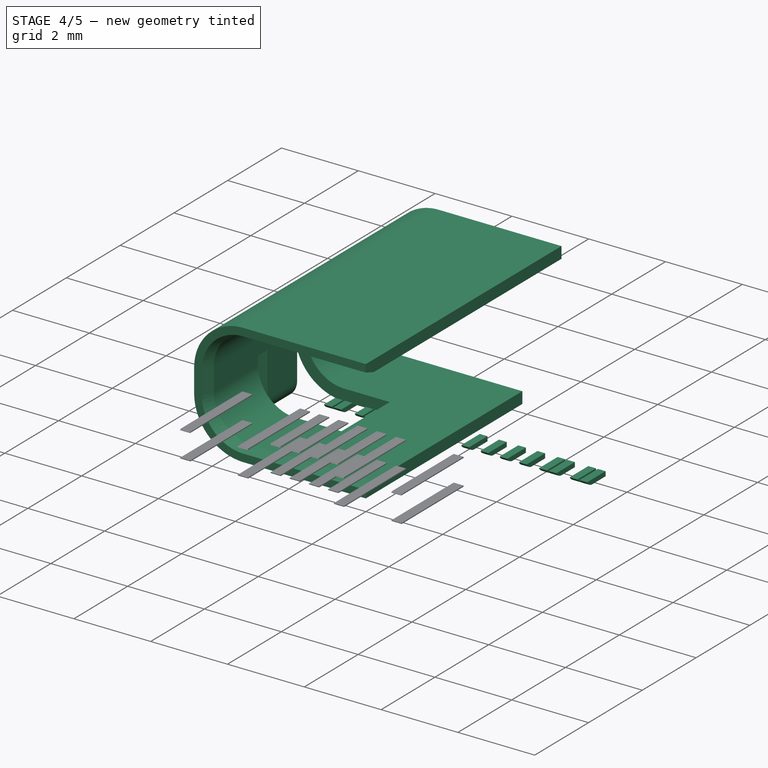
[diagram: stage 4 of 5 — iso view after this stage's code; geometry added in this stage tinted green]
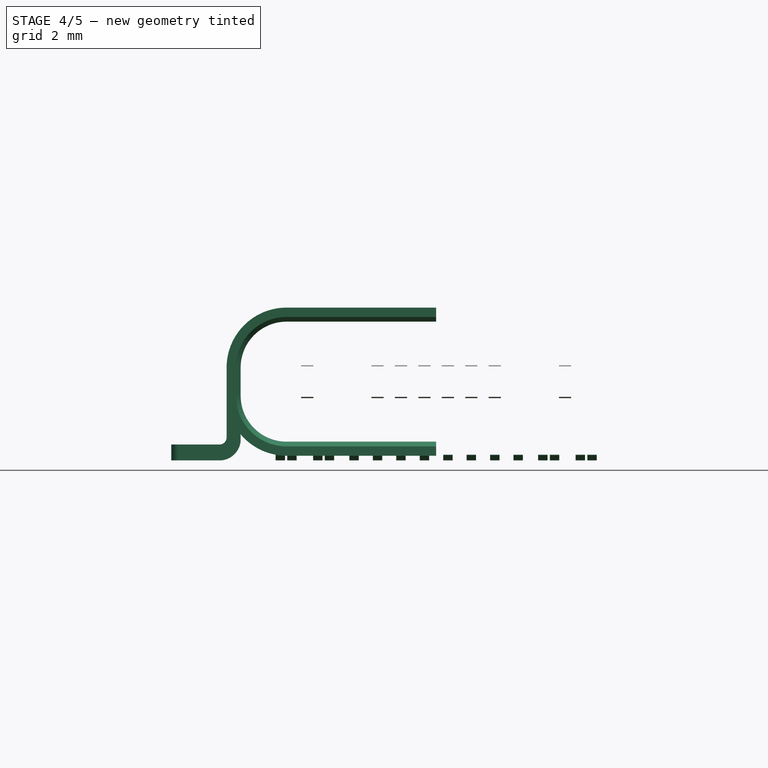
[diagram: stage 4 of 5 — front view after this stage's code; geometry added in this stage tinted green]
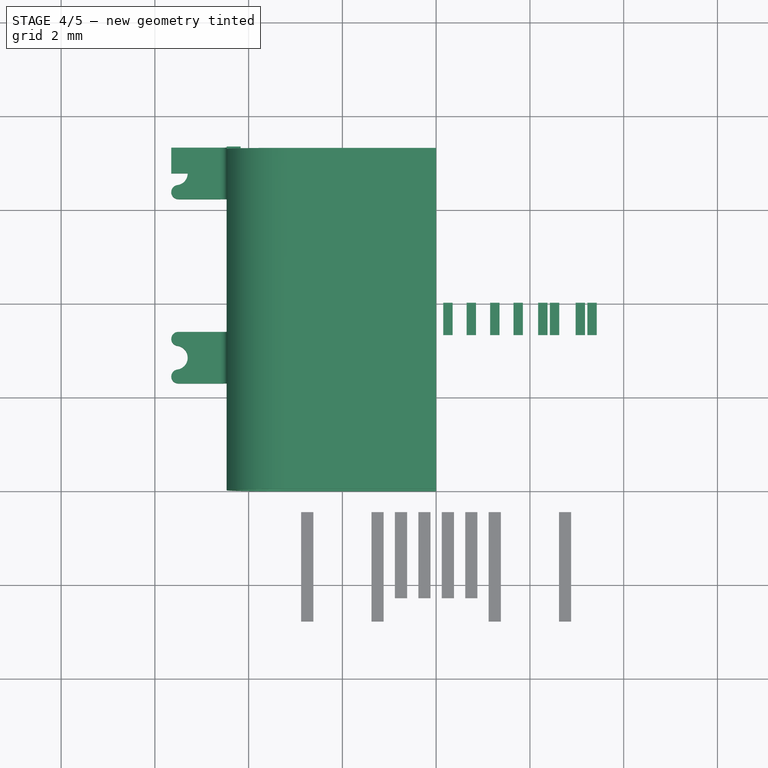
[diagram: stage 4 of 5 — top view after this stage's code; geometry added in this stage tinted green]
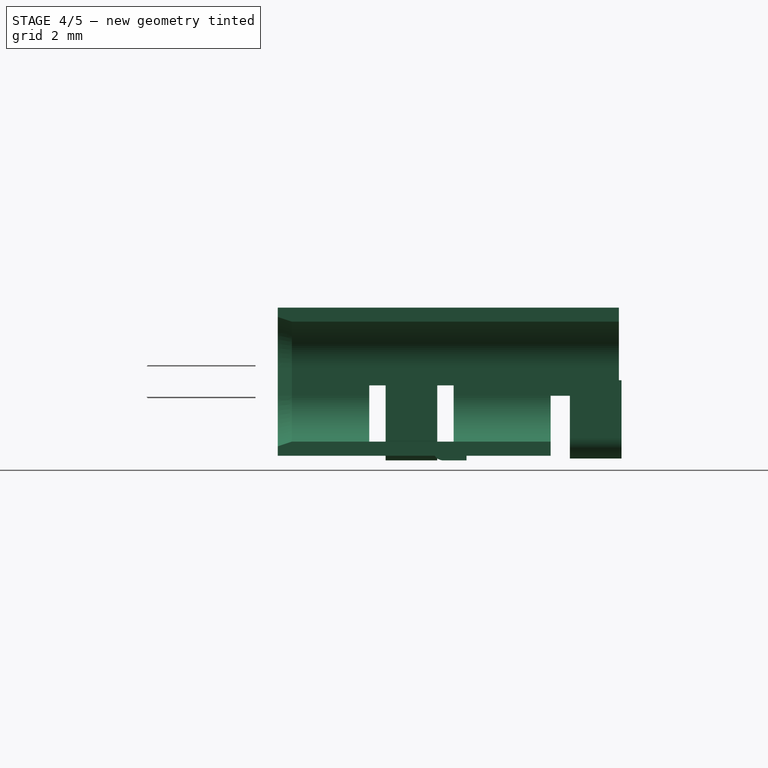
[diagram: stage 4 of 5 — right view after this stage's code; geometry added in this stage tinted green]
FEATURE [Sketcher::SketchObject] Sketch
  ArcFitTolerance = 1e-06
  AttachmentSupport = -> [XZ_Plane001]
  FullyConstrained = true
  MakeInternals = false
  MapMode = 5
  Placement = pos=(0,0,0) rot=(1,0,0;1.5708rad)
  sketch-geometry (12):
    g0: LineSegment StartX=0 StartY=0.4 StartZ=0 EndX=-3.19 EndY=0.4 EndZ=0
    g1: LineSegment StartX=-4.17 StartY=1.38 StartZ=0 EndX=-4.17 EndY=1.98 EndZ=0
    g2: LineSegment StartX=-3.19 StartY=2.96 StartZ=0 EndX=0 EndY=2.96 EndZ=0
    g3: ArcOfCircle CenterX=-3.19 CenterY=1.98 CenterZ=0 NormalX=0 NormalY=0 NormalZ=1 AngleXU=0 Radius=0.98 StartAngle=1.5708 EndAngle=3.14159
    g4: ArcOfCircle CenterX=-3.19 CenterY=1.38 CenterZ=0 NormalX=0 NormalY=0 NormalZ=1 AngleXU=0 Radius=0.98 StartAngle=3.14159 EndAngle=4.71239
    g5: LineSegment StartX=0 StartY=2.96 StartZ=0 EndX=0 EndY=3.26 EndZ=0
    g6: LineSegment StartX=0 StartY=3.26 StartZ=0 EndX=-3.18999 EndY=3.26 EndZ=0
    g7: LineSegment StartX=-4.47 StartY=1.98 StartZ=0 EndX=-4.47 EndY=1.38 EndZ=0
    g8: LineSegment StartX=-3.19 StartY=0.1 StartZ=0 EndX=0 EndY=0.1 EndZ=0
    g9: LineSegment StartX=0 StartY=0.4 StartZ=0 EndX=0 EndY=0.1 EndZ=0
    g10: ArcOfCircle CenterX=-3.19 CenterY=1.38 CenterZ=0 NormalX=0 NormalY=0 NormalZ=1 AngleXU=0 Radius=1.28 StartAngle=3.14159 EndAngle=4.71239
    g11: ArcOfCircle CenterX=-3.19 CenterY=1.98 CenterZ=0 NormalX=0 NormalY=0 NormalZ=1 AngleXU=0 Radius=1.28 StartAngle=1.57079 EndAngle=3.14159
  constraints (31):
    c: Horizontal(g0)
    c: Vertical(g1)
    c: Horizontal(g2)
    c: Tangent(g4,g0) = 1.5708
    c: Tangent(g4,g1) = 1.5708
    c: Tangent(g3,g1) = 1.5708
    c: Tangent(g3,g2) = 1.5708
    c: DistanceY(g-1,g0) = 0.4
    c: Vertical(g0,g-1)
    c: Vertical(g0,g2)
    c: Distance(g-2,g1) = 4.17
    c: DistanceY(g0,g2) = 2.56
    c: Radius(g4) = 0.98
    c: Equal(g4,g3)
    c: Coincident(g5,g2)
    c: PointOnObject(g5,g-2)
    c: Distance(g5,g5) = 0.3
    c: Coincident(g6,g5)
    c: Horizontal(g6)
    c: Vertical(g7)
    c: Horizontal(g8)
    c: Coincident(g9,g0)
    c: Coincident(g9,g8)
    c: Vertical(g9)
    c: DistanceY(g9,g9) = 0.3
    c: Coincident(g10,g4)
    c: Coincident(g11,g3)
    c: Coincident(g11,g6)
    c: Tangent(g10,g8) = -1.5708
    c: Tangent(g10,g7) = -1.5708
    c: Tangent(g11,g7) = -1.5708
FEATURE [PartDesign::Pad] Pad  label="Extrusion"
  Direction = (0,-1,2e-16)
  Length = 7.275
  Length2 = 10
  Placement = pos=(0,0,0) rot=(1,0,0;1.5708rad)
  Profile = -> Sketch
  ReferenceAxis = -> Sketch [N_Axis]
  Refine = true
  Reversed = true
  Suppressed = false
  Type = 0
FEATURE [PartDesign::Chamfer] Chamfer
  Angle = 45
  Base = -> Pad [Edge9,Edge12,Edge15,Edge6,Edge3]
  BaseFeature = -> Pad
  ChamferType = 1
  FlipDirection = true
  Placement = pos=(0,0,0) rot=(1,0,0;1.5708rad)
  Refine = true
  Size = 0.1
  Size2 = 0.3
  SupportTransform = false
  Suppressed = false
  UseAllEdges = false
FEATURE [Sketcher::SketchObject] Sketch001
  ArcFitTolerance = 1e-06
  AttachmentSupport = -> [XY_Plane001]
  FullyConstrained = true
  MakeInternals = false
  MapMode = 5
  sketch-geometry (5):
    g0: LineSegment StartX=-2 StartY=3.75 StartZ=0 EndX=-4.47 EndY=3.75 EndZ=0
    g1: LineSegment StartX=-4.47 StartY=3.75 StartZ=0 EndX=-4.47 EndY=1.95 EndZ=0
    g2: LineSegment StartX=-4.47 StartY=1.95 StartZ=0 EndX=-2 EndY=1.95 EndZ=0
    g3: LineSegment StartX=-2 StartY=1.95 StartZ=0 EndX=-2 EndY=3.75 EndZ=0
    g4: GeomPoint X=-2 Y=2.85 Z=0
  constraints (13):
    c: Coincident(g0,g1)
    c: Coincident(g1,g2)
    c: Coincident(g2,g3)
    c: Coincident(g3,g0)
    c: Horizontal(g0)
    c: Horizontal(g2)
    c: Vertical(g1)
    c: Vertical(g3)
    c: DistanceX(g1,g-1) = 4.47
    c: Symmetric(g3,g3,g4)
    c: DistanceY(g-1,g4) = 2.85
    c: DistanceY(g1,g1) = 1.8
    c: DistanceX(g0,g0) = 2.47
FEATURE [PartDesign::Pocket] Pocket  label="FrontLegPocket"
  BaseFeature = -> Chamfer
  Direction = (0,0,-1)
  Length = 1.6
  Length2 = 5
  Placement = pos=(0,0,0) rot=(1,0,0;1.5708rad)
  Profile = -> Sketch001
  ReferenceAxis = -> Sketch001 [N_Axis]
  Refine = true
  Reversed = true
  Suppressed = false
  Type = 0
FEATURE [Sketcher::SketchObject] Sketch002
  ArcFitTolerance = 1e-06
  AttachmentSupport = -> [XY_Plane001]
  FullyConstrained = true
  MakeInternals = false
  MapMode = 5
  sketch-geometry (4):
    g0: LineSegment StartX=0 StartY=5.82 StartZ=0 EndX=0 EndY=7.35 EndZ=0
    g1: LineSegment StartX=0 StartY=7.35 StartZ=0 EndX=-4.47 EndY=7.35 EndZ=0
    g2: LineSegment StartX=-4.47 StartY=7.35 StartZ=0 EndX=-4.47 EndY=5.82 EndZ=0
    g3: LineSegment StartX=-4.47 StartY=5.82 StartZ=0 EndX=0 EndY=5.82 EndZ=0
  constraints (12):
    c: Coincident(g0,g1)
    c: Coincident(g1,g2)
    c: Coincident(g2,g3)
    c: Coincident(g3,g0)
    c: Vertical(g0)
    c: Vertical(g2)
    c: Horizontal(g1)
    c: Horizontal(g3)
    c: PointOnObject(g0,g-2)
    c: DistanceX(g1,g1) = 4.47
    c: DistanceY(g-1,g0) = 5.82
    c: DistanceY(g-1,g0) = 7.35
FEATURE [PartDesign::Pocket] Pocket001  label="BackLegPocket"
  BaseFeature = -> Pocket
  Direction = (0,0,-1)
  Length = 1.38
  Length2 = 5
  Placement = pos=(0,0,0) rot=(1,0,0;1.5708rad)
  Profile = -> Sketch002
  ReferenceAxis = -> Sketch002 [N_Axis]
  Refine = true
  Reversed = true
  Suppressed = false
  Type = 0
FEATURE [PartDesign::Plane] DatumPlane
  AttachmentOffset = pos=(0,0,-5.65) rot=(0,0,1;0rad)
  AttachmentSupport = -> [YZ_Plane001]
  Length = 60
  MapMode = 5
  Placement = pos=(-5.65,0,0) rot=(0.57735,0.57735,0.57735;2.0944rad)
  ResizeMode = 0
  Width = 60
FEATURE [Sketcher::SketchObject] Sketch003  label="FrontLegProfile"
  ArcFitTolerance = 1e-06
  AttachmentSupport = -> [DatumPlane]
  FullyConstrained = true
  MakeInternals = false
  MapMode = 5
  Placement = pos=(-5.65,0,0) rot=(0.57735,0.57735,0.57735;2.0944rad)
  sketch-geometry (5):
    g0: LineSegment StartX=3.4 StartY=0.3 StartZ=0 EndX=2.3 EndY=0.3 EndZ=0
    g1: LineSegment StartX=2.3 StartY=0.3 StartZ=0 EndX=2.3 EndY=0 EndZ=0
    g2: LineSegment StartX=2.3 StartY=0 StartZ=0 EndX=3.4 EndY=0 EndZ=0
    g3: LineSegment StartX=3.4 StartY=0 StartZ=0 EndX=3.4 EndY=0.3 EndZ=0
    g4: GeomPoint X=2.85 Y=0 Z=0
  constraints (13):
    c: Coincident(g0,g1)
    c: Coincident(g1,g2)
    c: Coincident(g2,g3)
    c: Coincident(g3,g0)
    c: Horizontal(g0)
    c: Horizontal(g2)
    c: Vertical(g1)
    c: Vertical(g3)
    c: PointOnObject(g1,g-1)
    c: Distance(g1,g1) = 0.3
    c: DistanceX(g0,g0) = 1.1
    c: Symmetric(g2,g2,g4)
    c: DistanceX(g-1,g4) = 2.85
FEATURE [Sketcher::SketchObject] Sketch004  label="LegsPath"
  ArcFitTolerance = 1e-06
  AttachmentSupport = -> [XZ_Plane001]
  FullyConstrained = true
  MakeInternals = false
  MapMode = 5
  Placement = pos=(0,0,0) rot=(1,0,0;1.5708rad)
  sketch-geometry (3):
    g0: LineSegment StartX=-5.65 StartY=0.15 StartZ=0 EndX=-4.62 EndY=0.15 EndZ=0
    g1: ArcOfCircle CenterX=-4.62 CenterY=0.45 CenterZ=0 NormalX=0 NormalY=0 NormalZ=1 AngleXU=0 Radius=0.3 StartAngle=4.71239 EndAngle=6.28319
    g2: LineSegment StartX=-4.32 StartY=0.45 StartZ=0 EndX=-4.32 EndY=1.73 EndZ=0
  constraints (9):
    c: Horizontal(g0)
    c: Vertical(g2)
    c: DistanceY(g-1,g2) = 1.73
    c: DistanceX(g2,g-1) = 4.32
    c: DistanceY(g-1,g0) = 0.15
    c: Radius(g1) = 0.3
    c: Tangent(g1,g0) = -1.5708
    c: Tangent(g2,g1) = -1.5708
    c: DistanceX(g0,g-1) = 5.65
FEATURE [PartDesign::AdditivePipe] AdditivePipe  label="FrontLegPipe"
  AuxilleryCurvelinear = true
  AuxillerySpineTangent = false
  BaseFeature = -> Pocket001
  Binormal = (0,0,0)
  Mode = 0
  Placement = pos=(0,0,0) rot=(1,0,0;1.5708rad)
  Profile = -> Sketch003
  Refine = true
  Spine = -> Sketch004 [Edge1,Edge2,Edge3]
  SpineTangent = false
  Suppressed = false
  Transformation = 0
  Transition = 0
FEATURE [Sketcher::SketchObject] Sketch005  label="BackLegProfile"
  ArcFitTolerance = 1e-06
  AttachmentSupport = -> [DatumPlane]
  FullyConstrained = true
  MakeInternals = false
  MapMode = 5
  Placement = pos=(-5.65,0,0) rot=(0.57735,0.57735,0.57735;2.0944rad)
  sketch-geometry (5):
    g0: LineSegment StartX=7.33 StartY=0.34 StartZ=0 EndX=6.23 EndY=0.34 EndZ=0
    g1: LineSegment StartX=6.23 StartY=0.34 StartZ=0 EndX=6.23 EndY=0.04 EndZ=0
    g2: LineSegment StartX=6.23 StartY=0.04 StartZ=0 EndX=7.33 EndY=0.04 EndZ=0
    g3: LineSegment StartX=7.33 StartY=0.04 StartZ=0 EndX=7.33 EndY=0.34 EndZ=0
    g4: GeomPoint X=6.78 Y=0.04 Z=0
  constraints (13):
    c: Coincident(g0,g1)
    c: Coincident(g1,g2)
    c: Coincident(g2,g3)
    c: Coincident(g3,g0)
    c: Horizontal(g0)
    c: Vertical(g1)
    c: Vertical(g3)
    c: Symmetric(g2,g2,g4)
    c: DistanceX(g0,g0) = 1.1
    c: Distance(g3,g3) = 0.3
    c: DistanceX(g-1,g4) = 6.78
    c: Horizontal(g2)
    c: Distance(g1,g-1) = 0.04
FEATURE [Sketcher::SketchObject] Sketch006  label="LegsPath001"
  ArcFitTolerance = 1e-06
  AttachmentSupport = -> [XZ_Plane001]
  FullyConstrained = true
  MakeInternals = false
  MapMode = 5
  Placement = pos=(0,0,0) rot=(1,0,0;1.5708rad)
  sketch-geometry (3):
    g0: LineSegment StartX=-5.65 StartY=0.19 StartZ=0 EndX=-4.62 EndY=0.19 EndZ=0
    g1: ArcOfCircle CenterX=-4.62 CenterY=0.49 CenterZ=0 NormalX=0 NormalY=0 NormalZ=1 AngleXU=0 Radius=0.3 StartAngle=4.71239 EndAngle=6.28319
    g2: LineSegment StartX=-4.32 StartY=0.49 StartZ=0 EndX=-4.32 EndY=1.71 EndZ=0
  constraints (9):
    c: Horizontal(g0)
    c: Vertical(g2)
    c: DistanceY(g-1,g2) = 1.71
    c: DistanceX(g2,g-1) = 4.32
    c: DistanceY(g-1,g0) = 0.19
    c: Radius(g1) = 0.3
    c: Tangent(g1,g0) = -1.5708
    c: Tangent(g2,g1) = -1.5708
    c: DistanceX(g0,g-1) = 5.65
FEATURE [PartDesign::AdditivePipe] AdditivePipe001  label="BackLegPipe"
  AuxilleryCurvelinear = true
  AuxillerySpineTangent = false
  BaseFeature = -> AdditivePipe
  Binormal = (0,0,0)
  Mode = 0
  Placement = pos=(0,0,0) rot=(1,0,0;1.5708rad)
  Profile = -> Sketch005
  Refine = true
  Spine = -> Sketch006 [Edge1,Edge2,Edge3]
  SpineTangent = false
  Suppressed = false
  Transformation = 0
  Transition = 0
FEATURE [Sketcher::SketchObject] Sketch007
  ArcFitTolerance = 1e-06
  AttachmentSupport = -> [AdditivePipe001]
  ExternalGeometry = -> [AdditivePipe001]
  FullyConstrained = true
  MakeInternals = false
  MapMode = 5
  Placement = pos=(-1e-15,8e-16,1.71) rot=(0,0,1;3.14159rad)
  sketch-geometry (5):
    g0: ArcOfCircle CenterX=5.555 CenterY=-2.85 CenterZ=0 NormalX=0 NormalY=0 NormalZ=1 AngleXU=0 Radius=0.255 StartAngle=1.70558 EndAngle=3.14159
    g1: LineSegment StartX=5.50067 StartY=-2.3 StartZ=0 EndX=5.65 EndY=-2.3 EndZ=0
    g2: LineSegment StartX=5.65 StartY=-2.3 StartZ=0 EndX=5.65 EndY=-2.85 EndZ=0
    g3: LineSegment StartX=5.65 StartY=-2.85 StartZ=0 EndX=5.3 EndY=-2.85 EndZ=0
    g4: ArcOfCircle CenterX=5.50067 CenterY=-2.44933 CenterZ=0 NormalX=0 NormalY=0 NormalZ=1 AngleXU=0 Radius=0.149334 StartAngle=4.84717 EndAngle=7.85398
  constraints (13):
    c: Coincident(g1,g-4)
    c: Coincident(g3,g2)
    c: Coincident(g3,g0)
    c: Horizontal(g3)
    c: Symmetric(g2,g-5,g2)
    c: Coincident(g1,g2)
    c: PointOnObject(g0,g3)
    c: PointOnObject(g1,g-4)
    c: DistanceX(g3,g3) = 0.35
    c: Radius(g0) = 0.255
    c: Tangent(g4,g2)
    c: Tangent(g4,g1) = 1.5708
    c: Tangent(g4,g0) = 1.5708
FEATURE [Image::ImagePlane] USB4110  label="USB4110-Top"
  Placement = pos=(21.3,-7.27,3.26) rot=(0,0,1;0rad)
  XSize = 64.1294
  YSize = 45.3549
FEATURE [PartDesign::Pocket] Pocket002  label="FrontLegEnd"
  BaseFeature = -> AdditivePipe001
  Direction = (0,0,-1)
  Length = 5
  Length2 = 5
  Placement = pos=(0,0,0) rot=(1,0,0;1.5708rad)
  Profile = -> Sketch007
  ReferenceAxis = -> Sketch007 [N_Axis]
  Refine = true
  Suppressed = false
  Type = 1
FEATURE [PartDesign::Mirrored] Mirrored  label="FrontLegEndMirror"
  BaseFeature = -> Pocket002
  MirrorPlane = -> Pocket002 [Face44]
  Originals = -> [Pocket002]
  Placement = pos=(0,0,0) rot=(1,0,0;1.5708rad)
  Refine = true
  Suppressed = false
  TransformMode = 0
FEATURE [Sketcher::SketchObject] Sketch008
  ArcFitTolerance = 1e-06
  AttachmentSupport = -> [Mirrored]
  ExternalGeometry = -> [Mirrored]
  FullyConstrained = true
  MakeInternals = false
  MapMode = 5
  Placement = pos=(0,1e-16,0.34) rot=(0,0,1;3.14159rad)
  sketch-geometry (5):
    g0: LineSegment StartX=5.65 StartY=-6.23 StartZ=0 EndX=5.49833 EndY=-6.23 EndZ=0
    g1: LineSegment StartX=5.65 StartY=-6.23 StartZ=0 EndX=5.65 EndY=-6.78 EndZ=0
    g2: LineSegment StartX=5.65 StartY=-6.78 StartZ=0 EndX=5.3 EndY=-6.78 EndZ=0
    g3: ArcOfCircle CenterX=5.49833 CenterY=-6.38167 CenterZ=0 NormalX=0 NormalY=0 NormalZ=1 AngleXU=0 Radius=0.151669 StartAngle=4.84138 EndAngle=7.85398
    g4: ArcOfCircle CenterX=5.55 CenterY=-6.78 CenterZ=0 NormalX=0 NormalY=0 NormalZ=1 AngleXU=0 Radius=0.25 StartAngle=1.69979 EndAngle=3.14159
  constraints (13):
    c: Coincident(g0,g-3)
    c: Horizontal(g0)
    c: Coincident(g1,g0)
    c: Symmetric(g-3,g-3,g1)
    c: Coincident(g2,g1)
    c: Horizontal(g2)
    c: Coincident(g4,g2)
    c: Tangent(g3,g1)
    c: Tangent(g3,g0) = -1.5708
    c: PointOnObject(g4,g2)
    c: DistanceX(g2,g2) = 0.35
    c: Tangent(g3,g4) = 1.5708
    c: Radius(g4) = 0.25
FEATURE [PartDesign::Pocket] Pocket003  label="BackLegEnd"
  BaseFeature = -> Mirrored
  Direction = (0,0,-1)
  Length = 5
  Length2 = 5
  Placement = pos=(0,0,0) rot=(1,0,0;1.5708rad)
  Profile = -> Sketch008
  ReferenceAxis = -> Sketch008 [N_Axis]
  Refine = true
  Suppressed = false
  Type = 1
FEATURE [PartDesign::Body] Body002  label="Pin1"
  AllowCompound = false
  Group = -> [Sketch027,Pad007]
  Origin = -> Origin004
  Placement = pos=(-0.25,0,0) rot=(0,0,1;0rad)
  Tip = -> Pad007
FEATURE [PartDesign::FeatureBase] Clone
  BaseFeature = -> Body002
  Suppressed = false
FEATURE [PartDesign::Body] Body003  label="Pin8"
  AllowCompound = false
  Group = -> [Clone]
  Origin = -> Origin006
  Placement = pos=(-3.325,0,0) rot=(0,0,1;0rad)
  Tip = -> Clone
FEATURE [PartDesign::FeatureBase] Clone001
  BaseFeature = -> Body002
  Suppressed = false
FEATURE [PartDesign::Body] Body001  label="Plastic"
  AllowCompound = false
  Group = -> [DatumPlane001,Sketch015,Pad001,Sketch016,Pad002,Sketch017,Pad003,Sketch018,Pad004,Sketch019,Pocket007,Sketch020,Pocket008,DatumPlane002,Sketch021,Pad005,Chamfer002,Chamfer003,Sketch022,Pocket009,Sketch023,Pocket010,Chamfer004,Chamfer005,Chamfer006,Sketch024,Pocket011,Mirrored004,Chamfer007,Chamfer008,Chamfer009,Sketch025,Pad006,Chamfer010,Sketch026,Pocket012,Chamfer011,Mirrored006]
  Origin = -> Origin003
  Placement = pos=(0,-3.675,0) rot=(0,0,1;0rad)
  Tip = -> Mirrored006
FEATURE [Part::Mirroring] Part__Mirroring  label="BackPins (Mirror #1)"
  Base = (0,0,0)
  Normal = (1,0,0)
  Source = -> Part001
FEATURE [App::DocumentObjectGroup] Group  label="Reference"
  Group = -> [USB4110,USB4111,USB4112,USB4113,USB4114,USB4115]
FEATURE [Part::MultiFuse] Fusion  label="BackPinsAll"
  Placement = pos=(0,-3.675,0) rot=(0,0,1;0rad)
  Refine = true
  Shapes = -> [Part__Mirroring,Part001]
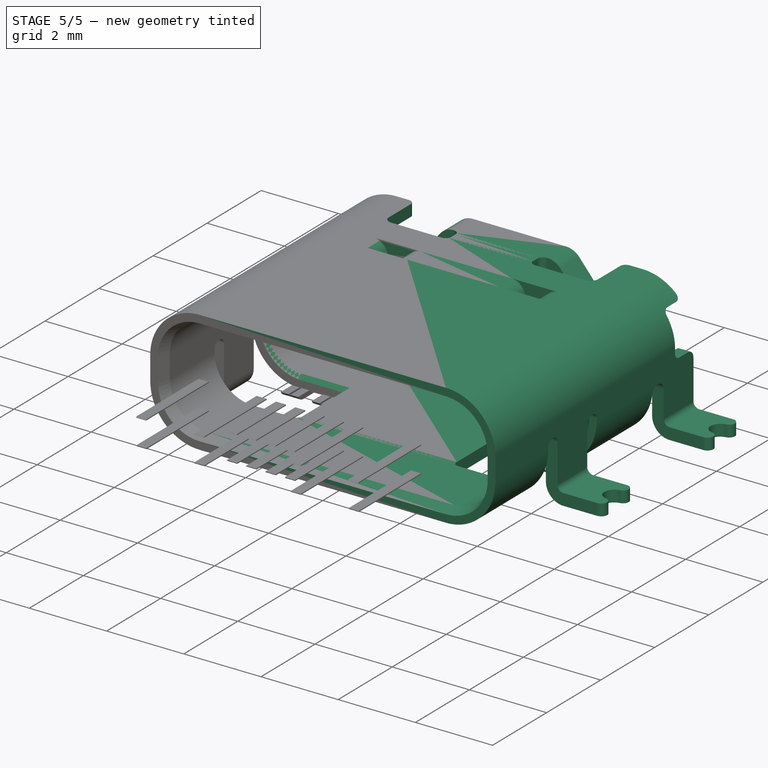
[diagram: stage 5 of 5 — iso view after this stage's code; geometry added in this stage tinted green]
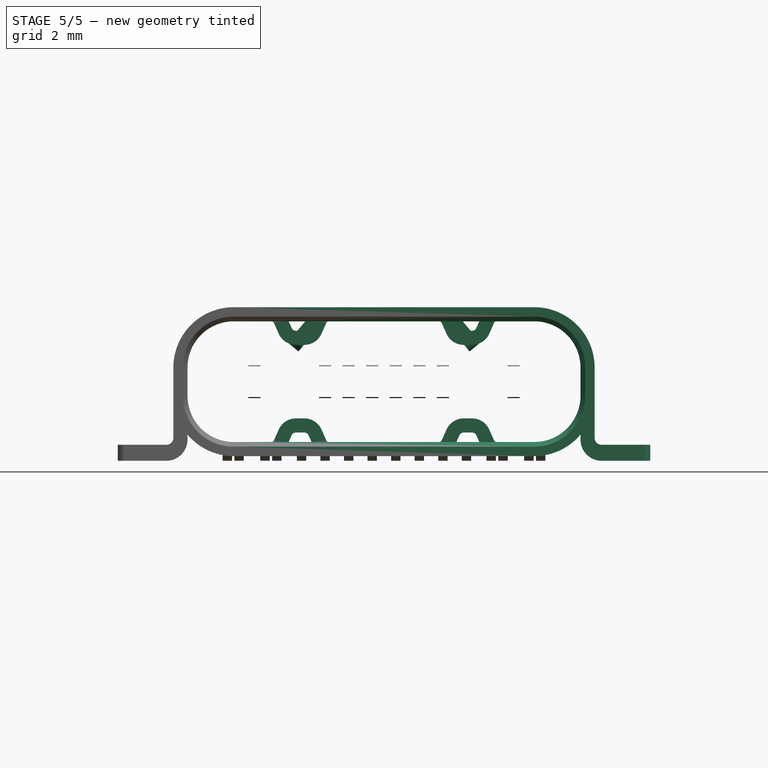
[diagram: stage 5 of 5 — front view after this stage's code; geometry added in this stage tinted green]
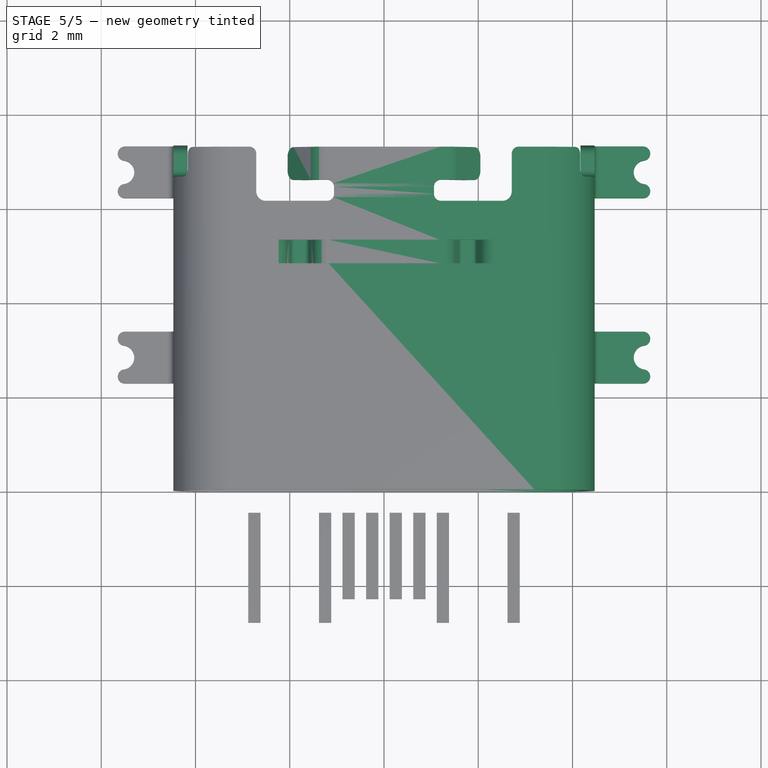
[diagram: stage 5 of 5 — top view after this stage's code; geometry added in this stage tinted green]
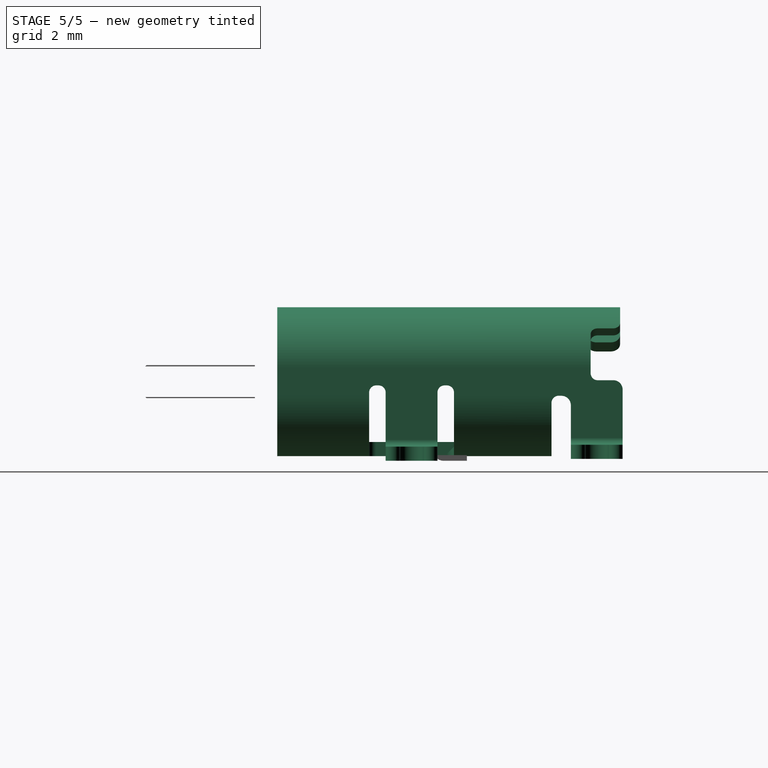
[diagram: stage 5 of 5 — right view after this stage's code; geometry added in this stage tinted green]
FEATURE [PartDesign::Mirrored] Mirrored001  label="BackLegEndMirror"
  BaseFeature = -> Pocket003
  MirrorPlane = -> Pocket003 [Face46]
  Originals = -> [Pocket003]
  Placement = pos=(0,0,0) rot=(1,0,0;1.5708rad)
  Refine = true
  Suppressed = false
  TransformMode = 0
FEATURE [Sketcher::SketchObject] Sketch009
  ArcFitTolerance = 1e-06
  AttachmentSupport = -> [XY_Plane001]
  FullyConstrained = true
  MakeInternals = false
  MapMode = 5
  sketch-geometry (4):
    g0: LineSegment StartX=-1.17 StartY=5.3 StartZ=0 EndX=-2.39 EndY=5.3 EndZ=0
    g1: LineSegment StartX=-2.39 StartY=5.3 StartZ=0 EndX=-2.39 EndY=4.8 EndZ=0
    g2: LineSegment StartX=-2.39 StartY=4.8 StartZ=0 EndX=-1.17 EndY=4.8 EndZ=0
    g3: LineSegment StartX=-1.17 StartY=4.8 StartZ=0 EndX=-1.17 EndY=5.3 EndZ=0
  constraints (12):
    c: Coincident(g0,g1)
    c: Coincident(g1,g2)
    c: Coincident(g2,g3)
    c: Coincident(g3,g0)
    c: Horizontal(g0)
    c: Horizontal(g2)
    c: Vertical(g1)
    c: Vertical(g3)
    c: DistanceY(g1,g1) = 0.5
    c: DistanceX(g2,g2) = 1.22
    c: DistanceX(g2,g-1) = 1.17
    c: DistanceY(g-1,g2) = 4.8
FEATURE [PartDesign::Pocket] Pocket004  label="FrontClipPocket"
  BaseFeature = -> Mirrored001
  Direction = (0,0,-1)
  Length = 5
  Length2 = 5
  Placement = pos=(0,0,0) rot=(1,0,0;1.5708rad)
  Profile = -> Sketch009
  ReferenceAxis = -> Sketch009 [N_Axis]
  Refine = true
  Reversed = true
  Suppressed = false
  Type = 1
FEATURE [Image::ImagePlane] USB4111  label="USB4110-Front"
  Placement = pos=(21.3,7e-16,2.97) rot=(1,0,0;1.5708rad)
  XSize = 64.1294
  YSize = 45.3549
FEATURE [Sketcher::SketchObject] Sketch010
  ArcFitTolerance = 1e-06
  AttachmentSupport = -> [Pocket004]
  ExternalGeometry = -> [Pocket004]
  FullyConstrained = true
  MakeInternals = false
  MapMode = 5
  Placement = pos=(0,5.3,-1.2e-15) rot=(1,0,0;1.5708rad)
  sketch-geometry (6):
    g0: ArcOfCircle CenterX=-2.3835 CenterY=2.91 CenterZ=0 NormalX=0 NormalY=0 NormalZ=1 AngleXU=0 Radius=0.2 StartAngle=0.418181 EndAngle=1.5708
    g1: LineSegment StartX=-2.20073 StartY=2.99122 StartZ=0 EndX=-2.0973 EndY=2.75848 EndZ=0
    g2: ArcOfCircle CenterX=-1.86885 CenterY=2.86 CenterZ=0 NormalX=0 NormalY=0 NormalZ=1 AngleXU=0 Radius=0.25 StartAngle=3.55977 EndAngle=4.71239
    g3: LineSegment StartX=-1.86885 StartY=2.61 StartZ=0 EndX=-1.78 EndY=2.61 EndZ=0
    g4: LineSegment [constr] StartX=-1.78 StartY=2.96 StartZ=0 EndX=-1.78 EndY=2.61 EndZ=0
    g5: LineSegment StartX=-2.39 StartY=3.11 StartZ=0 EndX=-2.3835 EndY=3.11 EndZ=0
  constraints (16):
    c: Horizontal(g3)
    c: Tangent(g1,g0) = 1.5708
    c: Tangent(g2,g1) = -1.5708
    c: Tangent(g3,g2) = -1.5708
    c: Symmetric(g-4,g-4,g4)
    c: Coincident(g4,g3)
    c: Vertical(g4)
    c: Angle(g1,g-4) = 1.15262
    c: DistanceY(g4,g4) = 0.35
    c: Radius(g2) = 0.25
    c: Radius(g0) = 0.2
    c: Vertical(g0,g0)
    c: Symmetric(g-3,g-3,g5)
    c: Coincident(g5,g0)
    c: Horizontal(g5)
    c: Distance(g5,g5) = 0.0065
FEATURE [PartDesign::AdditivePipe] AdditivePipe002  label="TopClipHalf"
  AuxilleryCurvelinear = true
  AuxillerySpineTangent = false
  BaseFeature = -> Pocket004
  Binormal = (0,0,0)
  Mode = 0
  Placement = pos=(0,0,0) rot=(1,0,0;1.5708rad)
  Profile = -> Pocket004 [Face42]
  Refine = true
  Spine = -> Sketch010 [Edge5,Edge4,Edge3,Edge2,Edge1]
  SpineTangent = false
  Suppressed = false
  Transformation = 0
  Transition = 0
FEATURE [PartDesign::Mirrored] Mirrored002  label="TopClip"
  BaseFeature = -> AdditivePipe002
  MirrorPlane = -> AdditivePipe002 [Face55]
  Originals = -> [AdditivePipe002]
  Placement = pos=(0,0,0) rot=(1,0,0;1.5708rad)
  Refine = true
  Suppressed = false
  TransformMode = 0
FEATURE [Sketcher::SketchObject] Sketch011
  ArcFitTolerance = 1e-06
  AttachmentSupport = -> [Mirrored002]
  ExternalGeometry = -> [Mirrored002]
  FullyConstrained = true
  MakeInternals = false
  MapMode = 5
  Placement = pos=(0,5.3,-1.2e-15) rot=(1,0,0;1.5708rad)
  sketch-geometry (6):
    g0: LineSegment StartX=-2.39 StartY=0.25 StartZ=0 EndX=-2.3835 EndY=0.25 EndZ=0
    g1: ArcOfCircle CenterX=-2.3835 CenterY=0.45 CenterZ=0 NormalX=0 NormalY=0 NormalZ=1 AngleXU=0 Radius=0.2 StartAngle=4.71239 EndAngle=5.865
    g2: LineSegment StartX=-2.20073 StartY=0.36878 StartZ=0 EndX=-2.0973 EndY=0.601525 EndZ=0
    g3: ArcOfCircle CenterX=-1.86885 CenterY=0.5 CenterZ=0 NormalX=0 NormalY=0 NormalZ=1 AngleXU=0 Radius=0.25 StartAngle=1.5708 EndAngle=2.72341
    g4: LineSegment StartX=-1.86885 StartY=0.75 StartZ=0 EndX=-1.78 EndY=0.75 EndZ=0
    g5: LineSegment [constr] StartX=-1.78 StartY=0.75 StartZ=0 EndX=-1.78 EndY=0.4 EndZ=0
  constraints (15):
    c: Symmetric(g-3,g-3,g0)
    c: Horizontal(g0)
    c: Tangent(g1,g0) = -1.5708
    c: Tangent(g4,g3) = 1.5708
    c: Tangent(g3,g2) = 1.5708
    c: Horizontal(g4)
    c: Angle(g-4,g2) = 1.15262
    c: Tangent(g2,g1) = -1.5708
    c: Radius(g1) = 0.2
    c: Distance(g0,g0) = 0.0065
    c: Coincident(g5,g4)
    c: Symmetric(g-4,g-4,g5)
    c: Vertical(g5)
    c: Radius(g3) = 0.25
    c: DistanceY(g5,g5) = 0.35
FEATURE [PartDesign::AdditivePipe] AdditivePipe003  label="BottomClipHalf"
  AuxilleryCurvelinear = true
  AuxillerySpineTangent = false
  BaseFeature = -> Mirrored002
  Binormal = (0,0,0)
  Mode = 0
  Placement = pos=(0,0,0) rot=(1,0,0;1.5708rad)
  Profile = -> Mirrored002 [Face10]
  Refine = true
  Spine = -> Sketch011 [Edge1,Edge2,Edge3,Edge4,Edge5]
  SpineTangent = false
  Suppressed = false
  Transformation = 0
  Transition = 0
FEATURE [PartDesign::Mirrored] Mirrored003  label="BottomClip"
  BaseFeature = -> AdditivePipe003
  MirrorPlane = -> AdditivePipe003 [Face72]
  Originals = -> [AdditivePipe003]
  Placement = pos=(0,0,0) rot=(1,0,0;1.5708rad)
  Refine = true
  Suppressed = false
  TransformMode = 0
FEATURE [Sketcher::SketchObject] Sketch012
  ArcFitTolerance = 1e-06
  AttachmentSupport = -> [Mirrored003]
  ExternalGeometry = -> [Mirrored003]
  FullyConstrained = true
  MakeInternals = false
  MapMode = 5
  Placement = pos=(0,7.275,0) rot=(-1,0,0;1.5708rad)
  sketch-geometry (4):
    g0: LineSegment StartX=-4.47 StartY=-1.71 StartZ=0 EndX=-2.17095 EndY=-1.71 EndZ=0
    g1: LineSegment StartX=-4.16442 StartY=-2.81 StartZ=0 EndX=-2.17095 EndY=-1.71 EndZ=0
    g2: LineSegment StartX=-4.47 StartY=-1.98 StartZ=0 EndX=-4.47 EndY=-1.71 EndZ=0
    g3: ArcOfCircle CenterX=-3.19 CenterY=-1.98 CenterZ=0 NormalX=0 NormalY=0 NormalZ=1 AngleXU=0 Radius=1.28 StartAngle=3.14159 EndAngle=3.84712
  constraints (10):
    c: Coincident(g0,g-5)
    c: Horizontal(g0)
    c: Coincident(g1,g0)
    c: Angle(g0,g1) = 0.504226
    c: Distance(g1,g0) = 1.1
    c: Coincident(g2,g-5)
    c: Coincident(g2,g0)
    c: Coincident(g3,g2)
    c: Coincident(g3,g1)
    c: Coincident(g3,g-4)
FEATURE [Image::ImagePlane] USB4112  label="USB4110-Back"
  Placement = pos=(-7.38,7.7,2.97) rot=(1,0,0;1.5708rad)
  XSize = 64.1294
  YSize = 45.3549
FEATURE [Image::ImagePlane] USB4113  label="USB4110-Side"
  Placement = pos=(-5.65,10.92,2.97) rot=(0.57735,0.57735,0.57735;2.0944rad)
  XSize = 64.1294
  YSize = 45.3549
FEATURE [PartDesign::Pocket] Pocket005  label="SideClipPocket"
  BaseFeature = -> Mirrored003
  Direction = (0,-1,-2e-16)
  Length = 0.625
  Length2 = 5
  Placement = pos=(0,0,0) rot=(1,0,0;1.5708rad)
  Profile = -> Sketch012
  ReferenceAxis = -> Sketch012 [N_Axis]
  Refine = true
  Suppressed = false
  Type = 0
FEATURE [Sketcher::SketchObject] Sketch013
  ArcFitTolerance = 1e-06
  AttachmentSupport = -> [XY_Plane001]
  ExternalGeometry = -> [Pocket005]
  FullyConstrained = true
  MakeInternals = false
  MapMode = 5
  sketch-geometry (6):
    g0: LineSegment StartX=-2.71 StartY=7.275 StartZ=0 EndX=-2.71 EndY=6.125 EndZ=0
    g1: LineSegment StartX=-2.71 StartY=6.125 StartZ=0 EndX=-1.06 EndY=6.125 EndZ=0
    g2: LineSegment StartX=-1.06 StartY=6.125 StartZ=0 EndX=-1.06 EndY=6.575 EndZ=0
    g3: LineSegment StartX=-1.06 StartY=6.575 StartZ=0 EndX=-1.21 EndY=6.575 EndZ=0
    g4: LineSegment StartX=-1.21 StartY=6.575 StartZ=0 EndX=-1.21 EndY=7.275 EndZ=0
    g5: LineSegment StartX=-1.21 StartY=7.275 StartZ=0 EndX=-2.71 EndY=7.275 EndZ=0
  constraints (18):
    c: PointOnObject(g0,g-3)
    c: Vertical(g0)
    c: Coincident(g1,g0)
    c: Horizontal(g1)
    c: Coincident(g2,g1)
    c: Vertical(g2)
    c: Coincident(g3,g2)
    c: Horizontal(g3)
    c: Coincident(g4,g3)
    c: PointOnObject(g4,g-3)
    c: Vertical(g4)
    c: Coincident(g5,g4)
    c: Coincident(g5,g0)
    c: DistanceX(g1,g1) = 1.65
    c: Distance(g1,g-2) = 1.06
    c: DistanceY(g-1,g1) = 6.125
    c: DistanceY(g2,g2) = 0.45
    c: DistanceX(g5,g5) = 1.5
FEATURE [PartDesign::Pocket] Pocket006  label="BackClipPocket"
  BaseFeature = -> Pocket005
  Direction = (0,0,-1)
  Length = 5
  Length2 = 5
  Placement = pos=(0,0,0) rot=(1,0,0;1.5708rad)
  Profile = -> Sketch013
  ReferenceAxis = -> Sketch013 [N_Axis]
  Refine = true
  Reversed = true
  Suppressed = false
  Type = 1
FEATURE [Sketcher::SketchObject] Sketch014
  ArcFitTolerance = 1e-06
  AttachmentSupport = -> [Pocket006]
  ExternalGeometry = -> [Pocket006]
  FullyConstrained = true
  MakeInternals = false
  MapMode = 5
  Placement = pos=(0,6.575,-1.4e-15) rot=(1,0,0;1.5708rad)
  sketch-geometry (2):
    g0: ArcOfCircle CenterX=-1.21 CenterY=2.81 CenterZ=0 NormalX=0 NormalY=0 NormalZ=1 AngleXU=0 Radius=0.3 StartAngle=1.5708 EndAngle=2.44346
    g1: LineSegment StartX=-1.43981 StartY=3.00284 StartZ=0 EndX=-1.93155 EndY=2.41681 EndZ=0
  constraints (6):
    c: Symmetric(g-3,g-3,g0)
    c: Vertical(g0,g0)
    c: Radius(g0) = 0.3
    c: Tangent(g1,g0) = -1.5708
    c: Angle(g1,g-3) = 0.698132
    c: Distance(g1,g1) = 0.765
FEATURE [PartDesign::AdditivePipe] AdditivePipe004  label="BackClip"
  AuxilleryCurvelinear = true
  AuxillerySpineTangent = false
  BaseFeature = -> Pocket006
  Binormal = (0,0,0)
  Mode = 0
  Placement = pos=(0,0,0) rot=(1,0,0;1.5708rad)
  Profile = -> Pocket006 [Face38]
  Refine = true
  Spine = -> Sketch014 [Edge1,Edge2]
  SpineTangent = false
  Suppressed = false
  Transformation = 0
  Transition = 0
FEATURE [PartDesign::Chamfer] Chamfer001  label="FrontLegPocketChamfer"
  Angle = 45
  Base = -> AdditivePipe004 [Edge21,Edge89,Edge93]
  BaseFeature = -> AdditivePipe004
  ChamferType = 0
  FlipDirection = false
  Placement = pos=(0,0,0) rot=(1,0,0;1.5708rad)
  Refine = true
  Size = 0.1
  Size2 = 1
  SupportTransform = false
  Suppressed = false
  UseAllEdges = false
FEATURE [PartDesign::Fillet] Fillet  label="Filled0.2mm"
  Base = -> Chamfer001 [Edge109,Edge157,Edge254,Edge246,Edge249]
  BaseFeature = -> Chamfer001
  Placement = pos=(0,0,0) rot=(1,0,0;1.5708rad)
  Radius = 0.2
  Refine = true
  SupportTransform = false
  Suppressed = false
  UseAllEdges = false
FEATURE [PartDesign::Fillet] Fillet001  label="Fillet0.15mm"
  Base = -> Fillet [Edge243,Edge156,Edge244,Edge147,Edge62,Edge58,Edge23,Edge42,Edge40,Edge66,Edge75,Edge82,Edge131]
  BaseFeature = -> Fillet
  Placement = pos=(0,0,0) rot=(1,0,0;1.5708rad)
  Radius = 0.15
  Refine = true
  SupportTransform = false
  Suppressed = false
  UseAllEdges = false
FEATURE [PartDesign::Body] Body021  label="BottomLongConnPin2"
  AllowCompound = false
  Group = -> [Clone014]
  Origin = -> Origin025
  Placement = pos=(-5.5,0,3.36) rot=(0,1,0;3.14159rad)
  Tip = -> Clone014
FEATURE [App::Part] Part002  label="ConnPins"
  Group = -> [Body014,Body015,Body016,Body017,Body018,Body019,Body020,Body021]
  Origin = -> Origin013
FEATURE [PartDesign::Mirrored] Mirrored005
  BaseFeature = -> Fillet001
  MirrorPlane = -> YZ_Plane001
  Placement = pos=(0,0,0) rot=(1,0,0;1.5708rad)
  Refine = true
  Suppressed = false
  TransformMode = 1
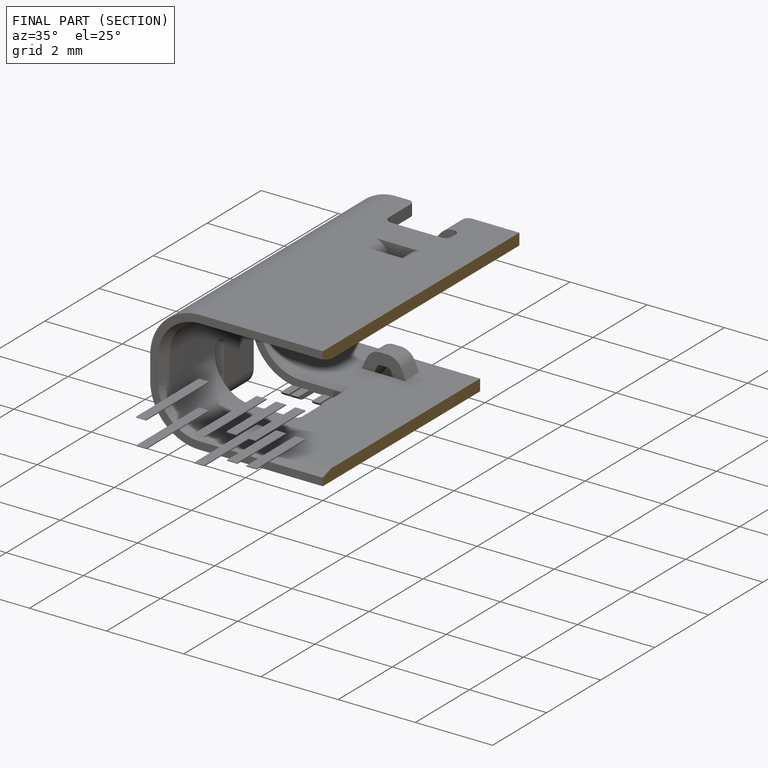
[diagram: finished part — half-section view (interior)]
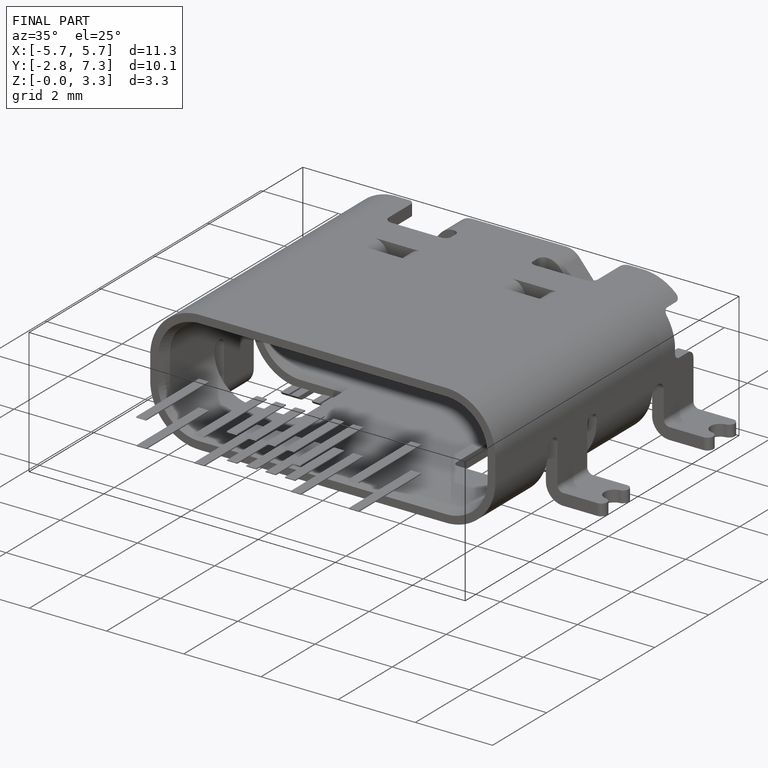
[diagram: finished part — iso view with bounding-box wireframe]
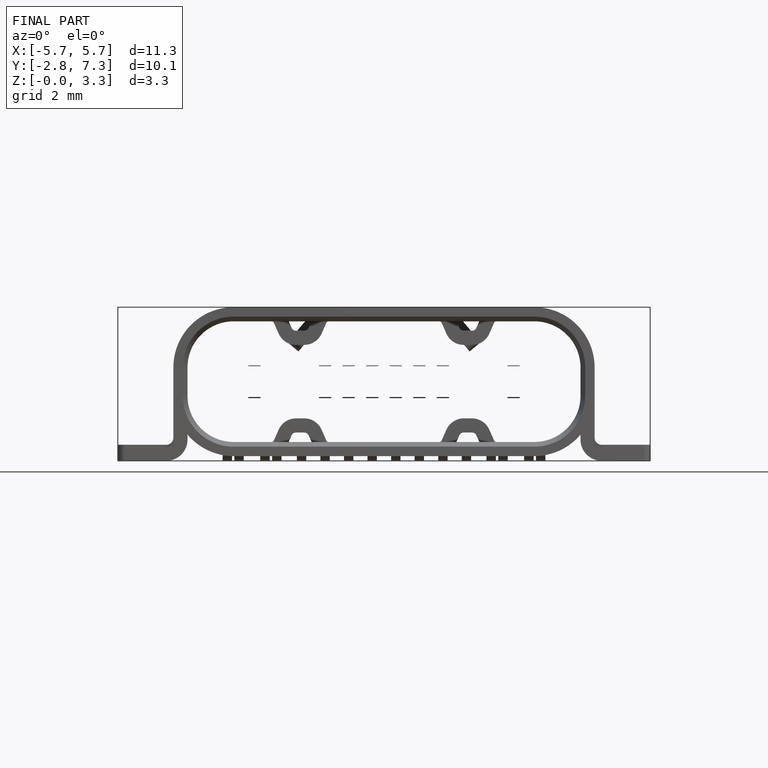
[diagram: finished part — front view with bounding-box wireframe]
